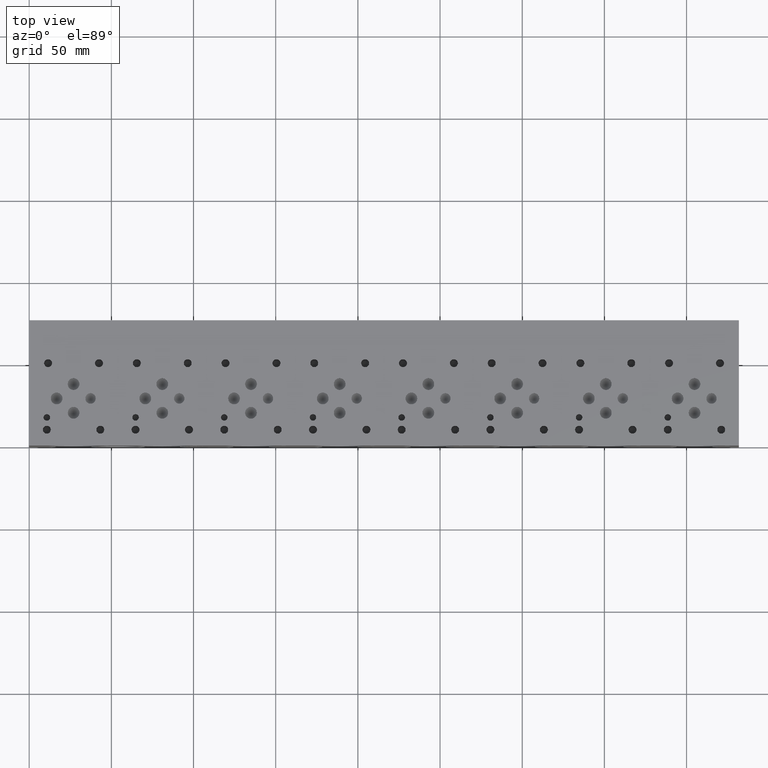
[diagram: clean part render]
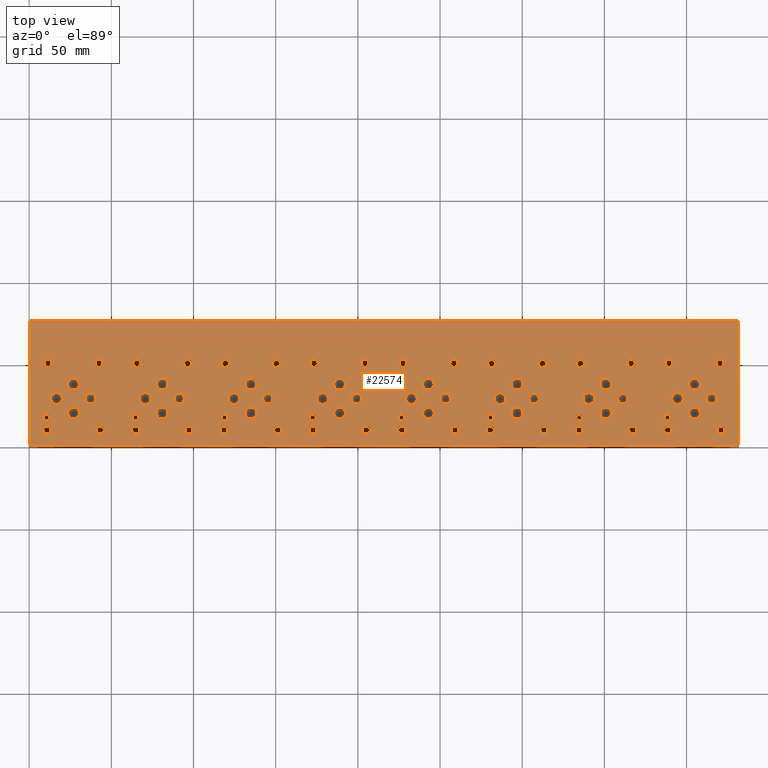
[diagram: same view with one face highlighted and labeled with its STEP entity id]
A machine part, top view. The second image highlights one B-rep face of the part: STEP entity #22574.
In plain terms, the highlighted planar face has unit normal (0, 0, 1).
Its self-contained STEP definition (entity closure, byte-faithful):
#824=CIRCLE('',#23741,1.9812);
#825=CIRCLE('',#23742,1.9812);
#828=CIRCLE('',#23747,1.9812);
#829=CIRCLE('',#23748,1.9812);
#832=CIRCLE('',#23753,1.9812);
#833=CIRCLE('',#23754,1.9812);
#836=CIRCLE('',#23759,1.9812);
#837=CIRCLE('',#23760,1.9812);
#840=CIRCLE('',#23765,1.9812);
#841=CIRCLE('',#23766,1.9812);
#844=CIRCLE('',#23771,1.9812);
#845=CIRCLE('',#23772,1.9812);
#848=CIRCLE('',#23777,1.9812);
#849=CIRCLE('',#23778,1.9812);
#852=CIRCLE('',#23783,3.175);
#853=CIRCLE('',#23784,3.175);
#856=CIRCLE('',#23789,3.175);
#857=CIRCLE('',#23790,3.175);
#860=CIRCLE('',#23795,3.175);
#861=CIRCLE('',#23796,3.175);
#864=CIRCLE('',#23801,3.175);
#865=CIRCLE('',#23802,3.175);
#868=CIRCLE('',#23807,3.175);
#869=CIRCLE('',#23808,3.175);
#872=CIRCLE('',#23813,3.175);
#873=CIRCLE('',#23814,3.175);
#876=CIRCLE('',#23819,3.175);
#877=CIRCLE('',#23820,3.175);
#880=CIRCLE('',#23825,3.175);
#881=CIRCLE('',#23826,3.175);
#884=CIRCLE('',#23831,3.5687);
#885=CIRCLE('',#23832,3.5687);
#888=CIRCLE('',#23837,3.5687);
#889=CIRCLE('',#23838,3.5687);
#892=CIRCLE('',#23843,3.5687);
#893=CIRCLE('',#23844,3.5687);
#896=CIRCLE('',#23849,3.5687);
#897=CIRCLE('',#23850,3.5687);
#900=CIRCLE('',#23855,3.5687);
#901=CIRCLE('',#23856,3.5687);
#904=CIRCLE('',#23861,3.5687);
#905=CIRCLE('',#23862,3.5687);
#908=CIRCLE('',#23867,3.5687);
#909=CIRCLE('',#23868,3.5687);
#912=CIRCLE('',#23873,3.5687);
#913=CIRCLE('',#23874,3.5687);
#916=CIRCLE('',#23879,3.5687);
#917=CIRCLE('',#23880,3.5687);
#920=CIRCLE('',#23885,3.5687);
#921=CIRCLE('',#23886,3.5687);
#924=CIRCLE('',#23891,3.5687);
#925=CIRCLE('',#23892,3.5687);
#928=CIRCLE('',#23897,3.5687);
#929=CIRCLE('',#23898,3.5687);
#932=CIRCLE('',#23903,3.5687);
#933=CIRCLE('',#23904,3.5687);
#936=CIRCLE('',#23909,3.5687);
#937=CIRCLE('',#23910,3.5687);
#940=CIRCLE('',#23915,3.5687);
#941=CIRCLE('',#23916,3.5687);
#944=CIRCLE('',#23921,3.5687);
#945=CIRCLE('',#23922,3.5687);
#948=CIRCLE('',#23927,3.5687);
#949=CIRCLE('',#23928,3.5687);
#952=CIRCLE('',#23933,3.5687);
#953=CIRCLE('',#23934,3.5687);
#956=CIRCLE('',#23939,3.5687);
#957=CIRCLE('',#23940,3.5687);
#960=CIRCLE('',#23945,3.5687);
#961=CIRCLE('',#23946,3.5687);
#964=CIRCLE('',#23951,3.5687);
#965=CIRCLE('',#23952,3.5687);
#968=CIRCLE('',#23957,3.5687);
#969=CIRCLE('',#23958,3.5687);
#972=CIRCLE('',#23963,3.5687);
#973=CIRCLE('',#23964,3.5687);
#976=CIRCLE('',#23969,3.5687);
#977=CIRCLE('',#23970,3.5687);
#980=CIRCLE('',#23975,1.9812);
#981=CIRCLE('',#23976,1.9812);
#987=CIRCLE('',#23985,2.413);
#988=CIRCLE('',#23986,2.413);
#994=CIRCLE('',#23996,2.413);
#995=CIRCLE('',#23997,2.413);
#1001=CIRCLE('',#24007,2.413);
#1002=CIRCLE('',#24008,2.413);
#1008=CIRCLE('',#24018,2.413);
#1009=CIRCLE('',#24019,2.413);
#1015=CIRCLE('',#24029,2.413);
#1016=CIRCLE('',#24030,2.413);
#1022=CIRCLE('',#24040,2.413);
#1023=CIRCLE('',#24041,2.413);
#1029=CIRCLE('',#24051,2.413);
#1030=CIRCLE('',#24052,2.413);
#1036=CIRCLE('',#24062,2.413);
#1037=CIRCLE('',#24063,2.413);
#1043=CIRCLE('',#24073,2.413);
#1044=CIRCLE('',#24074,2.413);
#1050=CIRCLE('',#24084,2.413);
#1051=CIRCLE('',#24085,2.413);
#1057=CIRCLE('',#24095,2.413);
#1058=CIRCLE('',#24096,2.413);
#1064=CIRCLE('',#24106,2.413);
#1065=CIRCLE('',#24107,2.413);
#1071=CIRCLE('',#24117,2.413);
#1072=CIRCLE('',#24118,2.413);
#1078=CIRCLE('',#24128,2.413);
#1079=CIRCLE('',#24129,2.413);
#1085=CIRCLE('',#24139,2.413);
#1086=CIRCLE('',#24140,2.413);
#1092=CIRCLE('',#24150,2.413);
#1093=CIRCLE('',#24151,2.413);
#1099=CIRCLE('',#24161,2.413);
#1100=CIRCLE('',#24162,2.413);
#1106=CIRCLE('',#24172,2.413);
#1107=CIRCLE('',#24173,2.413);
#1113=CIRCLE('',#24183,2.413);
#1114=CIRCLE('',#24184,2.413);
#1120=CIRCLE('',#24194,2.413);
#1121=CIRCLE('',#24195,2.413);
#1127=CIRCLE('',#24205,2.413);
#1128=CIRCLE('',#24206,2.413);
#1134=CIRCLE('',#24216,2.413);
#1135=CIRCLE('',#24217,2.413);
#1141=CIRCLE('',#24227,2.413);
#1142=CIRCLE('',#24228,2.413);
#1148=CIRCLE('',#24238,2.413);
#1149=CIRCLE('',#24239,2.413);
#1155=CIRCLE('',#24249,2.413);
#1156=CIRCLE('',#24250,2.413);
#1162=CIRCLE('',#24260,2.413);
#1163=CIRCLE('',#24261,2.413);
#1169=CIRCLE('',#24271,2.413);
#1170=CIRCLE('',#24272,2.413);
#1176=CIRCLE('',#24282,2.413);
#1177=CIRCLE('',#24283,2.413);
#1183=CIRCLE('',#24293,2.413);
#1184=CIRCLE('',#24294,2.413);
#1190=CIRCLE('',#24304,2.413);
#1191=CIRCLE('',#24305,2.413);
#1197=CIRCLE('',#24315,2.413);
#1198=CIRCLE('',#24316,2.413);
#1204=CIRCLE('',#24326,2.413);
#1205=CIRCLE('',#24327,2.413);
#1385=FACE_BOUND('',#4558,.T.);
#1386=FACE_BOUND('',#4559,.T.);
#1387=FACE_BOUND('',#4560,.T.);
#1388=FACE_BOUND('',#4561,.T.);
#1389=FACE_BOUND('',#4562,.T.);
#1390=FACE_BOUND('',#4563,.T.);
#1391=FACE_BOUND('',#4564,.T.);
#1392=FACE_BOUND('',#4565,.T.);
#1393=FACE_BOUND('',#4566,.T.);
#1394=FACE_BOUND('',#4567,.T.);
#1395=FACE_BOUND('',#4568,.T.);
#1396=FACE_BOUND('',#4569,.T.);
#1397=FACE_BOUND('',#4570,.T.);
#1398=FACE_BOUND('',#4571,.T.);
#1399=FACE_BOUND('',#4572,.T.);
#1400=FACE_BOUND('',#4573,.T.);
#1401=FACE_BOUND('',#4574,.T.);
#1402=FACE_BOUND('',#4575,.T.);
#1403=FACE_BOUND('',#4576,.T.);
#1404=FACE_BOUND('',#4577,.T.);
#1405=FACE_BOUND('',#4578,.T.);
#1406=FACE_BOUND('',#4579,.T.);
#1407=FACE_BOUND('',#4580,.T.);
#1408=FACE_BOUND('',#4581,.T.);
#1409=FACE_BOUND('',#4582,.T.);
#1410=FACE_BOUND('',#4583,.T.);
#1411=FACE_BOUND('',#4584,.T.);
#1412=FACE_BOUND('',#4585,.T.);
#1413=FACE_BOUND('',#4586,.T.);
#1414=FACE_BOUND('',#4587,.T.);
#1415=FACE_BOUND('',#4588,.T.);
#1416=FACE_BOUND('',#4589,.T.);
#1417=FACE_BOUND('',#4590,.T.);
#1418=FACE_BOUND('',#4591,.T.);
#1419=FACE_BOUND('',#4592,.T.);
#1420=FACE_BOUND('',#4593,.T.);
#1421=FACE_BOUND('',#4594,.T.);
#1422=FACE_BOUND('',#4595,.T.);
#1423=FACE_BOUND('',#4596,.T.);
#1424=FACE_BOUND('',#4597,.T.);
#1425=FACE_BOUND('',#4598,.T.);
#1426=FACE_BOUND('',#4599,.T.);
#1427=FACE_BOUND('',#4600,.T.);
#1428=FACE_BOUND('',#4601,.T.);
#1429=FACE_BOUND('',#4602,.T.);
#1430=FACE_BOUND('',#4603,.T.);
#1431=FACE_BOUND('',#4604,.T.);
#1432=FACE_BOUND('',#4605,.T.);
#1433=FACE_BOUND('',#4606,.T.);
#1434=FACE_BOUND('',#4607,.T.);
#1435=FACE_BOUND('',#4608,.T.);
#1436=FACE_BOUND('',#4609,.T.);
#1437=FACE_BOUND('',#4610,.T.);
#1438=FACE_BOUND('',#4611,.T.);
#1439=FACE_BOUND('',#4612,.T.);
#1440=FACE_BOUND('',#4613,.T.);
#1441=FACE_BOUND('',#4614,.T.);
#1442=FACE_BOUND('',#4615,.T.);
#1443=FACE_BOUND('',#4616,.T.);
#1444=FACE_BOUND('',#4617,.T.);
#1445=FACE_BOUND('',#4618,.T.);
#1446=FACE_BOUND('',#4619,.T.);
#1447=FACE_BOUND('',#4620,.T.);
#1448=FACE_BOUND('',#4621,.T.);
#1449=FACE_BOUND('',#4622,.T.);
#1450=FACE_BOUND('',#4623,.T.);
#1451=FACE_BOUND('',#4624,.T.);
#1452=FACE_BOUND('',#4625,.T.);
#1453=FACE_BOUND('',#4626,.T.);
#1454=FACE_BOUND('',#4627,.T.);
#1455=FACE_BOUND('',#4628,.T.);
#1456=FACE_BOUND('',#4629,.T.);
#2008=PLANE('',#24333);
#3193=FACE_OUTER_BOUND('',#4557,.T.);
#4557=EDGE_LOOP('',(#20295,#20296,#20297,#20298));
#4558=EDGE_LOOP('',(#20299,#20300));
#4559=EDGE_LOOP('',(#20301,#20302));
#4560=EDGE_LOOP('',(#20303,#20304));
#4561=EDGE_LOOP('',(#20305,#20306));
#4562=EDGE_LOOP('',(#20307,#20308));
#4563=EDGE_LOOP('',(#20309,#20310));
#4564=EDGE_LOOP('',(#20311,#20312));
#4565=EDGE_LOOP('',(#20313,#20314));
#4566=EDGE_LOOP('',(#20315,#20316));
#4567=EDGE_LOOP('',(#20317,#20318));
#4568=EDGE_LOOP('',(#20319,#20320));
#4569=EDGE_LOOP('',(#20321,#20322));
#4570=EDGE_LOOP('',(#20323,#20324));
#4571=EDGE_LOOP('',(#20325,#20326));
#4572=EDGE_LOOP('',(#20327,#20328));
#4573=EDGE_LOOP('',(#20329,#20330));
#4574=EDGE_LOOP('',(#20331,#20332));
#4575=EDGE_LOOP('',(#20333,#20334));
#4576=EDGE_LOOP('',(#20335,#20336));
#4577=EDGE_LOOP('',(#20337,#20338));
#4578=EDGE_LOOP('',(#20339,#20340));
#4579=EDGE_LOOP('',(#20341,#20342));
#4580=EDGE_LOOP('',(#20343,#20344));
#4581=EDGE_LOOP('',(#20345,#20346));
#4582=EDGE_LOOP('',(#20347,#20348));
#4583=EDGE_LOOP('',(#20349,#20350));
#4584=EDGE_LOOP('',(#20351,#20352));
#4585=EDGE_LOOP('',(#20353,#20354));
#4586=EDGE_LOOP('',(#20355,#20356));
#4587=EDGE_LOOP('',(#20357,#20358));
#4588=EDGE_LOOP('',(#20359,#20360));
#4589=EDGE_LOOP('',(#20361,#20362));
#4590=EDGE_LOOP('',(#20363,#20364));
#4591=EDGE_LOOP('',(#20365,#20366));
#4592=EDGE_LOOP('',(#20367,#20368));
#4593=EDGE_LOOP('',(#20369,#20370));
#4594=EDGE_LOOP('',(#20371,#20372));
#4595=EDGE_LOOP('',(#20373,#20374));
#4596=EDGE_LOOP('',(#20375,#20376));
#4597=EDGE_LOOP('',(#20377,#20378));
#4598=EDGE_LOOP('',(#20379,#20380));
#4599=EDGE_LOOP('',(#20381,#20382));
#4600=EDGE_LOOP('',(#20383,#20384));
#4601=EDGE_LOOP('',(#20385,#20386));
#4602=EDGE_LOOP('',(#20387,#20388));
#4603=EDGE_LOOP('',(#20389,#20390));
#4604=EDGE_LOOP('',(#20391,#20392));
#4605=EDGE_LOOP('',(#20393,#20394));
#4606=EDGE_LOOP('',(#20395,#20396));
#4607=EDGE_LOOP('',(#20397,#20398));
#4608=EDGE_LOOP('',(#20399,#20400));
#4609=EDGE_LOOP('',(#20401,#20402));
#4610=EDGE_LOOP('',(#20403,#20404));
#4611=EDGE_LOOP('',(#20405,#20406));
#4612=EDGE_LOOP('',(#20407,#20408));
#4613=EDGE_LOOP('',(#20409,#20410));
#4614=EDGE_LOOP('',(#20411,#20412));
#4615=EDGE_LOOP('',(#20413,#20414));
#4616=EDGE_LOOP('',(#20415,#20416));
#4617=EDGE_LOOP('',(#20417,#20418));
#4618=EDGE_LOOP('',(#20419,#20420));
#4619=EDGE_LOOP('',(#20421,#20422));
#4620=EDGE_LOOP('',(#20423,#20424));
#4621=EDGE_LOOP('',(#20425,#20426));
#4622=EDGE_LOOP('',(#20427,#20428));
#4623=EDGE_LOOP('',(#20429,#20430));
#4624=EDGE_LOOP('',(#20431,#20432));
#4625=EDGE_LOOP('',(#20433,#20434));
#4626=EDGE_LOOP('',(#20435,#20436));
#4627=EDGE_LOOP('',(#20437,#20438));
#4628=EDGE_LOOP('',(#20439,#20440));
#4629=EDGE_LOOP('',(#20441,#20442));
#4677=LINE('',#29985,#6500);
#5991=LINE('',#36710,#7814);
#6049=LINE('',#36981,#7872);
#6453=LINE('',#39510,#8276);
#6500=VECTOR('',#24407,10.);
#7814=VECTOR('',#26647,10.);
#7872=VECTOR('',#26759,10.);
#8276=VECTOR('',#29641,10.);
#8837=VERTEX_POINT('',#29982);
#8838=VERTEX_POINT('',#29984);
#10058=VERTEX_POINT('',#36708);
#10116=VERTEX_POINT('',#36980);
#10550=VERTEX_POINT('',#38291);
#10551=VERTEX_POINT('',#38292);
#10555=VERTEX_POINT('',#38304);
#10556=VERTEX_POINT('',#38305);
#10560=VERTEX_POINT('',#38317);
#10561=VERTEX_POINT('',#38318);
#10565=VERTEX_POINT('',#38330);
#10566=VERTEX_POINT('',#38331);
#10570=VERTEX_POINT('',#38343);
#10571=VERTEX_POINT('',#38344);
#10575=VERTEX_POINT('',#38356);
#10576=VERTEX_POINT('',#38357);
#10580=VERTEX_POINT('',#38369);
#10581=VERTEX_POINT('',#38370);
#10585=VERTEX_POINT('',#38382);
#10586=VERTEX_POINT('',#38383);
#10590=VERTEX_POINT('',#38395);
#10591=VERTEX_POINT('',#38396);
#10595=VERTEX_POINT('',#38408);
#10596=VERTEX_POINT('',#38409);
#10600=VERTEX_POINT('',#38421);
#10601=VERTEX_POINT('',#38422);
#10605=VERTEX_POINT('',#38434);
#10606=VERTEX_POINT('',#38435);
#10610=VERTEX_POINT('',#38447);
#10611=VERTEX_POINT('',#38448);
#10615=VERTEX_POINT('',#38460);
#10616=VERTEX_POINT('',#38461);
#10620=VERTEX_POINT('',#38473);
#10621=VERTEX_POINT('',#38474);
#10625=VERTEX_POINT('',#38486);
#10626=VERTEX_POINT('',#38487);
#10630=VERTEX_POINT('',#38499);
#10631=VERTEX_POINT('',#38500);
#10635=VERTEX_POINT('',#38512);
#10636=VERTEX_POINT('',#38513);
#10640=VERTEX_POINT('',#38525);
#10641=VERTEX_POINT('',#38526);
#10645=VERTEX_POINT('',#38538);
#10646=VERTEX_POINT('',#38539);
#10650=VERTEX_POINT('',#38551);
#10651=VERTEX_POINT('',#38552);
#10655=VERTEX_POINT('',#38564);
#10656=VERTEX_POINT('',#38565);
#10660=VERTEX_POINT('',#38577);
#10661=VERTEX_POINT('',#38578);
#10665=VERTEX_POINT('',#38590);
#10666=VERTEX_POINT('',#38591);
#10670=VERTEX_POINT('',#38603);
#10671=VERTEX_POINT('',#38604);
#10675=VERTEX_POINT('',#38616);
#10676=VERTEX_POINT('',#38617);
#10680=VERTEX_POINT('',#38629);
#10681=VERTEX_POINT('',#38630);
#10685=VERTEX_POINT('',#38642);
#10686=VERTEX_POINT('',#38643);
#10690=VERTEX_POINT('',#38655);
#10691=VERTEX_POINT('',#38656);
#10695=VERTEX_POINT('',#38668);
#10696=VERTEX_POINT('',#38669);
#10700=VERTEX_POINT('',#38681);
#10701=VERTEX_POINT('',#38682);
#10705=VERTEX_POINT('',#38694);
#10706=VERTEX_POINT('',#38695);
#10710=VERTEX_POINT('',#38707);
#10711=VERTEX_POINT('',#38708);
#10715=VERTEX_POINT('',#38720);
#10716=VERTEX_POINT('',#38721);
#10720=VERTEX_POINT('',#38733);
#10721=VERTEX_POINT('',#38734);
#10725=VERTEX_POINT('',#38746);
#10726=VERTEX_POINT('',#38747);
#10730=VERTEX_POINT('',#38759);
#10731=VERTEX_POINT('',#38760);
#10735=VERTEX_POINT('',#38772);
#10736=VERTEX_POINT('',#38773);
#10740=VERTEX_POINT('',#38785);
#10741=VERTEX_POINT('',#38786);
#10745=VERTEX_POINT('',#38798);
#10746=VERTEX_POINT('',#38799);
#10753=VERTEX_POINT('',#38818);
#10754=VERTEX_POINT('',#38819);
#10761=VERTEX_POINT('',#38840);
#10762=VERTEX_POINT('',#38841);
#10769=VERTEX_POINT('',#38862);
#10770=VERTEX_POINT('',#38863);
#10777=VERTEX_POINT('',#38884);
#10778=VERTEX_POINT('',#38885);
#10785=VERTEX_POINT('',#38906);
#10786=VERTEX_POINT('',#38907);
#10793=VERTEX_POINT('',#38928);
#10794=VERTEX_POINT('',#38929);
#10801=VERTEX_POINT('',#38950);
#10802=VERTEX_POINT('',#38951);
#10809=VERTEX_POINT('',#38972);
#10810=VERTEX_POINT('',#38973);
#10817=VERTEX_POINT('',#38994);
#10818=VERTEX_POINT('',#38995);
#10825=VERTEX_POINT('',#39016);
#10826=VERTEX_POINT('',#39017);
#10833=VERTEX_POINT('',#39038);
#10834=VERTEX_POINT('',#39039);
#10841=VERTEX_POINT('',#39060);
#10842=VERTEX_POINT('',#39061);
#10849=VERTEX_POINT('',#39082);
#10850=VERTEX_POINT('',#39083);
#10857=VERTEX_POINT('',#39104);
#10858=VERTEX_POINT('',#39105);
#10865=VERTEX_POINT('',#39126);
#10866=VERTEX_POINT('',#39127);
#10873=VERTEX_POINT('',#39148);
#10874=VERTEX_POINT('',#39149);
#10881=VERTEX_POINT('',#39170);
#10882=VERTEX_POINT('',#39171);
#10889=VERTEX_POINT('',#39192);
#10890=VERTEX_POINT('',#39193);
#10897=VERTEX_POINT('',#39214);
#10898=VERTEX_POINT('',#39215);
#10905=VERTEX_POINT('',#39236);
#10906=VERTEX_POINT('',#39237);
#10913=VERTEX_POINT('',#39258);
#10914=VERTEX_POINT('',#39259);
#10921=VERTEX_POINT('',#39280);
#10922=VERTEX_POINT('',#39281);
#10929=VERTEX_POINT('',#39302);
#10930=VERTEX_POINT('',#39303);
#10937=VERTEX_POINT('',#39324);
#10938=VERTEX_POINT('',#39325);
#10945=VERTEX_POINT('',#39346);
#10946=VERTEX_POINT('',#39347);
#10953=VERTEX_POINT('',#39368);
#10954=VERTEX_POINT('',#39369);
#10961=VERTEX_POINT('',#39390);
#10962=VERTEX_POINT('',#39391);
#10969=VERTEX_POINT('',#39412);
#10970=VERTEX_POINT('',#39413);
#10977=VERTEX_POINT('',#39434);
#10978=VERTEX_POINT('',#39435);
#10985=VERTEX_POINT('',#39456);
#10986=VERTEX_POINT('',#39457);
#10993=VERTEX_POINT('',#39478);
#10994=VERTEX_POINT('',#39479);
#11001=VERTEX_POINT('',#39500);
#11002=VERTEX_POINT('',#39501);
#11077=EDGE_CURVE('',#8838,#8837,#4677,.T.);
#12891=EDGE_CURVE('',#8837,#10058,#5991,.T.);
#12973=EDGE_CURVE('',#10116,#8838,#6049,.T.);
#13592=EDGE_CURVE('',#10550,#10551,#824,.T.);
#13593=EDGE_CURVE('',#10551,#10550,#825,.T.);
#13598=EDGE_CURVE('',#10555,#10556,#828,.T.);
#13599=EDGE_CURVE('',#10556,#10555,#829,.T.);
#13604=EDGE_CURVE('',#10560,#10561,#832,.T.);
#13605=EDGE_CURVE('',#10561,#10560,#833,.T.);
#13610=EDGE_CURVE('',#10565,#10566,#836,.T.);
#13611=EDGE_CURVE('',#10566,#10565,#837,.T.);
#13616=EDGE_CURVE('',#10570,#10571,#840,.T.);
#13617=EDGE_CURVE('',#10571,#10570,#841,.T.);
#13622=EDGE_CURVE('',#10575,#10576,#844,.T.);
#13623=EDGE_CURVE('',#10576,#10575,#845,.T.);
#13628=EDGE_CURVE('',#10580,#10581,#848,.T.);
#13629=EDGE_CURVE('',#10581,#10580,#849,.T.);
#13634=EDGE_CURVE('',#10585,#10586,#852,.T.);
#13635=EDGE_CURVE('',#10586,#10585,#853,.T.);
#13640=EDGE_CURVE('',#10590,#10591,#856,.T.);
#13641=EDGE_CURVE('',#10591,#10590,#857,.T.);
#13646=EDGE_CURVE('',#10595,#10596,#860,.T.);
#13647=EDGE_CURVE('',#10596,#10595,#861,.T.);
#13652=EDGE_CURVE('',#10600,#10601,#864,.T.);
#13653=EDGE_CURVE('',#10601,#10600,#865,.T.);
#13658=EDGE_CURVE('',#10605,#10606,#868,.T.);
#13659=EDGE_CURVE('',#10606,#10605,#869,.T.);
#13664=EDGE_CURVE('',#10610,#10611,#872,.T.);
#13665=EDGE_CURVE('',#10611,#10610,#873,.T.);
#13670=EDGE_CURVE('',#10615,#10616,#876,.T.);
#13671=EDGE_CURVE('',#10616,#10615,#877,.T.);
#13676=EDGE_CURVE('',#10620,#10621,#880,.T.);
#13677=EDGE_CURVE('',#10621,#10620,#881,.T.);
#13682=EDGE_CURVE('',#10625,#10626,#884,.T.);
#13683=EDGE_CURVE('',#10626,#10625,#885,.T.);
#13688=EDGE_CURVE('',#10630,#10631,#888,.T.);
#13689=EDGE_CURVE('',#10631,#10630,#889,.T.);
#13694=EDGE_CURVE('',#10635,#10636,#892,.T.);
#13695=EDGE_CURVE('',#10636,#10635,#893,.T.);
#13700=EDGE_CURVE('',#10640,#10641,#896,.T.);
#13701=EDGE_CURVE('',#10641,#10640,#897,.T.);
#13706=EDGE_CURVE('',#10645,#10646,#900,.T.);
#13707=EDGE_CURVE('',#10646,#10645,#901,.T.);
#13712=EDGE_CURVE('',#10650,#10651,#904,.T.);
#13713=EDGE_CURVE('',#10651,#10650,#905,.T.);
#13718=EDGE_CURVE('',#10655,#10656,#908,.T.);
#13719=EDGE_CURVE('',#10656,#10655,#909,.T.);
#13724=EDGE_CURVE('',#10660,#10661,#912,.T.);
#13725=EDGE_CURVE('',#10661,#10660,#913,.T.);
#13730=EDGE_CURVE('',#10665,#10666,#916,.T.);
#13731=EDGE_CURVE('',#10666,#10665,#917,.T.);
#13736=EDGE_CURVE('',#10670,#10671,#920,.T.);
#13737=EDGE_CURVE('',#10671,#10670,#921,.T.);
#13742=EDGE_CURVE('',#10675,#10676,#924,.T.);
#13743=EDGE_CURVE('',#10676,#10675,#925,.T.);
#13748=EDGE_CURVE('',#10680,#10681,#928,.T.);
#13749=EDGE_CURVE('',#10681,#10680,#929,.T.);
#13754=EDGE_CURVE('',#10685,#10686,#932,.T.);
#13755=EDGE_CURVE('',#10686,#10685,#933,.T.);
#13760=EDGE_CURVE('',#10690,#10691,#936,.T.);
#13761=EDGE_CURVE('',#10691,#10690,#937,.T.);
#13766=EDGE_CURVE('',#10695,#10696,#940,.T.);
#13767=EDGE_CURVE('',#10696,#10695,#941,.T.);
#13772=EDGE_CURVE('',#10700,#10701,#944,.T.);
#13773=EDGE_CURVE('',#10701,#10700,#945,.T.);
#13778=EDGE_CURVE('',#10705,#10706,#948,.T.);
#13779=EDGE_CURVE('',#10706,#10705,#949,.T.);
#13784=EDGE_CURVE('',#10710,#10711,#952,.T.);
#13785=EDGE_CURVE('',#10711,#10710,#953,.T.);
#13790=EDGE_CURVE('',#10715,#10716,#956,.T.);
#13791=EDGE_CURVE('',#10716,#10715,#957,.T.);
#13796=EDGE_CURVE('',#10720,#10721,#960,.T.);
#13797=EDGE_CURVE('',#10721,#10720,#961,.T.);
#13802=EDGE_CURVE('',#10725,#10726,#964,.T.);
#13803=EDGE_CURVE('',#10726,#10725,#965,.T.);
#13808=EDGE_CURVE('',#10730,#10731,#968,.T.);
#13809=EDGE_CURVE('',#10731,#10730,#969,.T.);
#13814=EDGE_CURVE('',#10735,#10736,#972,.T.);
#13815=EDGE_CURVE('',#10736,#10735,#973,.T.);
#13820=EDGE_CURVE('',#10740,#10741,#976,.T.);
#13821=EDGE_CURVE('',#10741,#10740,#977,.T.);
#13826=EDGE_CURVE('',#10745,#10746,#980,.T.);
#13827=EDGE_CURVE('',#10746,#10745,#981,.T.);
#13835=EDGE_CURVE('',#10753,#10754,#987,.T.);
#13836=EDGE_CURVE('',#10754,#10753,#988,.T.);
#13845=EDGE_CURVE('',#10761,#10762,#994,.T.);
#13846=EDGE_CURVE('',#10762,#10761,#995,.T.);
#13855=EDGE_CURVE('',#10769,#10770,#1001,.T.);
#13856=EDGE_CURVE('',#10770,#10769,#1002,.T.);
#13865=EDGE_CURVE('',#10777,#10778,#1008,.T.);
#13866=EDGE_CURVE('',#10778,#10777,#1009,.T.);
#13875=EDGE_CURVE('',#10785,#10786,#1015,.T.);
#13876=EDGE_CURVE('',#10786,#10785,#1016,.T.);
#13885=EDGE_CURVE('',#10793,#10794,#1022,.T.);
#13886=EDGE_CURVE('',#10794,#10793,#1023,.T.);
#13895=EDGE_CURVE('',#10801,#10802,#1029,.T.);
#13896=EDGE_CURVE('',#10802,#10801,#1030,.T.);
#13905=EDGE_CURVE('',#10809,#10810,#1036,.T.);
#13906=EDGE_CURVE('',#10810,#10809,#1037,.T.);
#13915=EDGE_CURVE('',#10817,#10818,#1043,.T.);
#13916=EDGE_CURVE('',#10818,#10817,#1044,.T.);
#13925=EDGE_CURVE('',#10825,#10826,#1050,.T.);
#13926=EDGE_CURVE('',#10826,#10825,#1051,.T.);
#13935=EDGE_CURVE('',#10833,#10834,#1057,.T.);
#13936=EDGE_CURVE('',#10834,#10833,#1058,.T.);
#13945=EDGE_CURVE('',#10841,#10842,#1064,.T.);
#13946=EDGE_CURVE('',#10842,#10841,#1065,.T.);
#13955=EDGE_CURVE('',#10849,#10850,#1071,.T.);
#13956=EDGE_CURVE('',#10850,#10849,#1072,.T.);
#13965=EDGE_CURVE('',#10857,#10858,#1078,.T.);
#13966=EDGE_CURVE('',#10858,#10857,#1079,.T.);
#13975=EDGE_CURVE('',#10865,#10866,#1085,.T.);
#13976=EDGE_CURVE('',#10866,#10865,#1086,.T.);
#13985=EDGE_CURVE('',#10873,#10874,#1092,.T.);
#13986=EDGE_CURVE('',#10874,#10873,#1093,.T.);
#13995=EDGE_CURVE('',#10881,#10882,#1099,.T.);
#13996=EDGE_CURVE('',#10882,#10881,#1100,.T.);
#14005=EDGE_CURVE('',#10889,#10890,#1106,.T.);
#14006=EDGE_CURVE('',#10890,#10889,#1107,.T.);
#14015=EDGE_CURVE('',#10897,#10898,#1113,.T.);
#14016=EDGE_CURVE('',#10898,#10897,#1114,.T.);
#14025=EDGE_CURVE('',#10905,#10906,#1120,.T.);
#14026=EDGE_CURVE('',#10906,#10905,#1121,.T.);
#14035=EDGE_CURVE('',#10913,#10914,#1127,.T.);
#14036=EDGE_CURVE('',#10914,#10913,#1128,.T.);
#14045=EDGE_CURVE('',#10921,#10922,#1134,.T.);
#14046=EDGE_CURVE('',#10922,#10921,#1135,.T.);
#14055=EDGE_CURVE('',#10929,#10930,#1141,.T.);
#14056=EDGE_CURVE('',#10930,#10929,#1142,.T.);
#14065=EDGE_CURVE('',#10937,#10938,#1148,.T.);
#14066=EDGE_CURVE('',#10938,#10937,#1149,.T.);
#14075=EDGE_CURVE('',#10945,#10946,#1155,.T.);
#14076=EDGE_CURVE('',#10946,#10945,#1156,.T.);
#14085=EDGE_CURVE('',#10953,#10954,#1162,.T.);
#14086=EDGE_CURVE('',#10954,#10953,#1163,.T.);
#14095=EDGE_CURVE('',#10961,#10962,#1169,.T.);
#14096=EDGE_CURVE('',#10962,#10961,#1170,.T.);
#14105=EDGE_CURVE('',#10969,#10970,#1176,.T.);
#14106=EDGE_CURVE('',#10970,#10969,#1177,.T.);
#14115=EDGE_CURVE('',#10977,#10978,#1183,.T.);
#14116=EDGE_CURVE('',#10978,#10977,#1184,.T.);
#14125=EDGE_CURVE('',#10985,#10986,#1190,.T.);
#14126=EDGE_CURVE('',#10986,#10985,#1191,.T.);
#14135=EDGE_CURVE('',#10993,#10994,#1197,.T.);
#14136=EDGE_CURVE('',#10994,#10993,#1198,.T.);
#14145=EDGE_CURVE('',#11001,#11002,#1204,.T.);
#14146=EDGE_CURVE('',#11002,#11001,#1205,.T.);
#14150=EDGE_CURVE('',#10058,#10116,#6453,.T.);
#20295=ORIENTED_EDGE('',*,*,#11077,.T.);
#20296=ORIENTED_EDGE('',*,*,#12891,.T.);
#20297=ORIENTED_EDGE('',*,*,#14150,.T.);
#20298=ORIENTED_EDGE('',*,*,#12973,.T.);
#20299=ORIENTED_EDGE('',*,*,#13592,.T.);
#20300=ORIENTED_EDGE('',*,*,#13593,.T.);
#20301=ORIENTED_EDGE('',*,*,#13598,.T.);
#20302=ORIENTED_EDGE('',*,*,#13599,.T.);
#20303=ORIENTED_EDGE('',*,*,#13604,.T.);
#20304=ORIENTED_EDGE('',*,*,#13605,.T.);
#20305=ORIENTED_EDGE('',*,*,#13610,.T.);
#20306=ORIENTED_EDGE('',*,*,#13611,.T.);
#20307=ORIENTED_EDGE('',*,*,#13616,.T.);
#20308=ORIENTED_EDGE('',*,*,#13617,.T.);
#20309=ORIENTED_EDGE('',*,*,#13622,.T.);
#20310=ORIENTED_EDGE('',*,*,#13623,.T.);
#20311=ORIENTED_EDGE('',*,*,#13628,.T.);
#20312=ORIENTED_EDGE('',*,*,#13629,.T.);
#20313=ORIENTED_EDGE('',*,*,#13634,.T.);
#20314=ORIENTED_EDGE('',*,*,#13635,.T.);
#20315=ORIENTED_EDGE('',*,*,#13640,.T.);
#20316=ORIENTED_EDGE('',*,*,#13641,.T.);
#20317=ORIENTED_EDGE('',*,*,#13646,.T.);
#20318=ORIENTED_EDGE('',*,*,#13647,.T.);
#20319=ORIENTED_EDGE('',*,*,#13652,.T.);
#20320=ORIENTED_EDGE('',*,*,#13653,.T.);
#20321=ORIENTED_EDGE('',*,*,#13658,.T.);
#20322=ORIENTED_EDGE('',*,*,#13659,.T.);
#20323=ORIENTED_EDGE('',*,*,#13664,.T.);
#20324=ORIENTED_EDGE('',*,*,#13665,.T.);
#20325=ORIENTED_EDGE('',*,*,#13670,.T.);
#20326=ORIENTED_EDGE('',*,*,#13671,.T.);
#20327=ORIENTED_EDGE('',*,*,#13676,.T.);
#20328=ORIENTED_EDGE('',*,*,#13677,.T.);
#20329=ORIENTED_EDGE('',*,*,#13682,.T.);
#20330=ORIENTED_EDGE('',*,*,#13683,.T.);
#20331=ORIENTED_EDGE('',*,*,#13688,.T.);
#20332=ORIENTED_EDGE('',*,*,#13689,.T.);
#20333=ORIENTED_EDGE('',*,*,#13694,.T.);
#20334=ORIENTED_EDGE('',*,*,#13695,.T.);
#20335=ORIENTED_EDGE('',*,*,#13700,.T.);
#20336=ORIENTED_EDGE('',*,*,#13701,.T.);
#20337=ORIENTED_EDGE('',*,*,#13706,.T.);
#20338=ORIENTED_EDGE('',*,*,#13707,.T.);
#20339=ORIENTED_EDGE('',*,*,#13712,.T.);
#20340=ORIENTED_EDGE('',*,*,#13713,.T.);
#20341=ORIENTED_EDGE('',*,*,#13718,.T.);
#20342=ORIENTED_EDGE('',*,*,#13719,.T.);
#20343=ORIENTED_EDGE('',*,*,#13724,.T.);
#20344=ORIENTED_EDGE('',*,*,#13725,.T.);
#20345=ORIENTED_EDGE('',*,*,#13730,.T.);
#20346=ORIENTED_EDGE('',*,*,#13731,.T.);
#20347=ORIENTED_EDGE('',*,*,#13736,.T.);
#20348=ORIENTED_EDGE('',*,*,#13737,.T.);
#20349=ORIENTED_EDGE('',*,*,#13742,.T.);
#20350=ORIENTED_EDGE('',*,*,#13743,.T.);
#20351=ORIENTED_EDGE('',*,*,#13748,.T.);
#20352=ORIENTED_EDGE('',*,*,#13749,.T.);
#20353=ORIENTED_EDGE('',*,*,#13754,.T.);
#20354=ORIENTED_EDGE('',*,*,#13755,.T.);
#20355=ORIENTED_EDGE('',*,*,#13760,.T.);
#20356=ORIENTED_EDGE('',*,*,#13761,.T.);
#20357=ORIENTED_EDGE('',*,*,#13766,.T.);
#20358=ORIENTED_EDGE('',*,*,#13767,.T.);
#20359=ORIENTED_EDGE('',*,*,#13772,.T.);
#20360=ORIENTED_EDGE('',*,*,#13773,.T.);
#20361=ORIENTED_EDGE('',*,*,#13778,.T.);
#20362=ORIENTED_EDGE('',*,*,#13779,.T.);
#20363=ORIENTED_EDGE('',*,*,#13784,.T.);
#20364=ORIENTED_EDGE('',*,*,#13785,.T.);
#20365=ORIENTED_EDGE('',*,*,#13790,.T.);
#20366=ORIENTED_EDGE('',*,*,#13791,.T.);
#20367=ORIENTED_EDGE('',*,*,#13796,.T.);
#20368=ORIENTED_EDGE('',*,*,#13797,.T.);
#20369=ORIENTED_EDGE('',*,*,#13802,.T.);
#20370=ORIENTED_EDGE('',*,*,#13803,.T.);
#20371=ORIENTED_EDGE('',*,*,#13808,.T.);
#20372=ORIENTED_EDGE('',*,*,#13809,.T.);
#20373=ORIENTED_EDGE('',*,*,#13814,.T.);
#20374=ORIENTED_EDGE('',*,*,#13815,.T.);
#20375=ORIENTED_EDGE('',*,*,#13820,.T.);
#20376=ORIENTED_EDGE('',*,*,#13821,.T.);
#20377=ORIENTED_EDGE('',*,*,#13826,.T.);
#20378=ORIENTED_EDGE('',*,*,#13827,.T.);
#20379=ORIENTED_EDGE('',*,*,#13835,.T.);
#20380=ORIENTED_EDGE('',*,*,#13836,.T.);
#20381=ORIENTED_EDGE('',*,*,#13845,.T.);
#20382=ORIENTED_EDGE('',*,*,#13846,.T.);
#20383=ORIENTED_EDGE('',*,*,#13855,.T.);
#20384=ORIENTED_EDGE('',*,*,#13856,.T.);
#20385=ORIENTED_EDGE('',*,*,#13865,.T.);
#20386=ORIENTED_EDGE('',*,*,#13866,.T.);
#20387=ORIENTED_EDGE('',*,*,#13875,.T.);
#20388=ORIENTED_EDGE('',*,*,#13876,.T.);
#20389=ORIENTED_EDGE('',*,*,#13885,.T.);
#20390=ORIENTED_EDGE('',*,*,#13886,.T.);
#20391=ORIENTED_EDGE('',*,*,#13895,.T.);
#20392=ORIENTED_EDGE('',*,*,#13896,.T.);
#20393=ORIENTED_EDGE('',*,*,#13905,.T.);
#20394=ORIENTED_EDGE('',*,*,#13906,.T.);
#20395=ORIENTED_EDGE('',*,*,#13915,.T.);
#20396=ORIENTED_EDGE('',*,*,#13916,.T.);
#20397=ORIENTED_EDGE('',*,*,#13925,.T.);
#20398=ORIENTED_EDGE('',*,*,#13926,.T.);
#20399=ORIENTED_EDGE('',*,*,#13935,.T.);
#20400=ORIENTED_EDGE('',*,*,#13936,.T.);
#20401=ORIENTED_EDGE('',*,*,#13945,.T.);
#20402=ORIENTED_EDGE('',*,*,#13946,.T.);
#20403=ORIENTED_EDGE('',*,*,#13955,.T.);
#20404=ORIENTED_EDGE('',*,*,#13956,.T.);
#20405=ORIENTED_EDGE('',*,*,#13965,.T.);
#20406=ORIENTED_EDGE('',*,*,#13966,.T.);
#20407=ORIENTED_EDGE('',*,*,#13975,.T.);
#20408=ORIENTED_EDGE('',*,*,#13976,.T.);
#20409=ORIENTED_EDGE('',*,*,#13985,.T.);
#20410=ORIENTED_EDGE('',*,*,#13986,.T.);
#20411=ORIENTED_EDGE('',*,*,#13995,.T.);
#20412=ORIENTED_EDGE('',*,*,#13996,.T.);
#20413=ORIENTED_EDGE('',*,*,#14005,.T.);
#20414=ORIENTED_EDGE('',*,*,#14006,.T.);
#20415=ORIENTED_EDGE('',*,*,#14015,.T.);
#20416=ORIENTED_EDGE('',*,*,#14016,.T.);
#20417=ORIENTED_EDGE('',*,*,#14025,.T.);
#20418=ORIENTED_EDGE('',*,*,#14026,.T.);
#20419=ORIENTED_EDGE('',*,*,#14035,.T.);
#20420=ORIENTED_EDGE('',*,*,#14036,.T.);
#20421=ORIENTED_EDGE('',*,*,#14045,.T.);
#20422=ORIENTED_EDGE('',*,*,#14046,.T.);
#20423=ORIENTED_EDGE('',*,*,#14055,.T.);
#20424=ORIENTED_EDGE('',*,*,#14056,.T.);
#20425=ORIENTED_EDGE('',*,*,#14065,.T.);
#20426=ORIENTED_EDGE('',*,*,#14066,.T.);
#20427=ORIENTED_EDGE('',*,*,#14075,.T.);
#20428=ORIENTED_EDGE('',*,*,#14076,.T.);
#20429=ORIENTED_EDGE('',*,*,#14085,.T.);
#20430=ORIENTED_EDGE('',*,*,#14086,.T.);
#20431=ORIENTED_EDGE('',*,*,#14095,.T.);
#20432=ORIENTED_EDGE('',*,*,#14096,.T.);
#20433=ORIENTED_EDGE('',*,*,#14105,.T.);
#20434=ORIENTED_EDGE('',*,*,#14106,.T.);
#20435=ORIENTED_EDGE('',*,*,#14115,.T.);
#20436=ORIENTED_EDGE('',*,*,#14116,.T.);
#20437=ORIENTED_EDGE('',*,*,#14125,.T.);
#20438=ORIENTED_EDGE('',*,*,#14126,.T.);
#20439=ORIENTED_EDGE('',*,*,#14135,.T.);
#20440=ORIENTED_EDGE('',*,*,#14136,.T.);
#20441=ORIENTED_EDGE('',*,*,#14145,.T.);
#20442=ORIENTED_EDGE('',*,*,#14146,.T.);
#22574=ADVANCED_FACE('',(#3193,#1385,#1386,#1387,#1388,#1389,#1390,#1391,
#1392,#1393,#1394,#1395,#1396,#1397,#1398,#1399,#1400,#1401,#1402,#1403,
#1404,#1405,#1406,#1407,#1408,#1409,#1410,#1411,#1412,#1413,#1414,#1415,
#1416,#1417,#1418,#1419,#1420,#1421,#1422,#1423,#1424,#1425,#1426,#1427,
#1428,#1429,#1430,#1431,#1432,#1433,#1434,#1435,#1436,#1437,#1438,#1439,
#1440,#1441,#1442,#1443,#1444,#1445,#1446,#1447,#1448,#1449,#1450,#1451,
#1452,#1453,#1454,#1455,#1456),#2008,.T.);
#23741=AXIS2_PLACEMENT_3D('',#38293,#28285,#28286);
#23742=AXIS2_PLACEMENT_3D('',#38294,#28287,#28288);
#23747=AXIS2_PLACEMENT_3D('',#38306,#28299,#28300);
#23748=AXIS2_PLACEMENT_3D('',#38307,#28301,#28302);
#23753=AXIS2_PLACEMENT_3D('',#38319,#28313,#28314);
#23754=AXIS2_PLACEMENT_3D('',#38320,#28315,#28316);
#23759=AXIS2_PLACEMENT_3D('',#38332,#28327,#28328);
#23760=AXIS2_PLACEMENT_3D('',#38333,#28329,#28330);
#23765=AXIS2_PLACEMENT_3D('',#38345,#28341,#28342);
#23766=AXIS2_PLACEMENT_3D('',#38346,#28343,#28344);
#23771=AXIS2_PLACEMENT_3D('',#38358,#28355,#28356);
#23772=AXIS2_PLACEMENT_3D('',#38359,#28357,#28358);
#23777=AXIS2_PLACEMENT_3D('',#38371,#28369,#28370);
#23778=AXIS2_PLACEMENT_3D('',#38372,#28371,#28372);
#23783=AXIS2_PLACEMENT_3D('',#38384,#28383,#28384);
#23784=AXIS2_PLACEMENT_3D('',#38385,#28385,#28386);
#23789=AXIS2_PLACEMENT_3D('',#38397,#28397,#28398);
#23790=AXIS2_PLACEMENT_3D('',#38398,#28399,#28400);
#23795=AXIS2_PLACEMENT_3D('',#38410,#28411,#28412);
#23796=AXIS2_PLACEMENT_3D('',#38411,#28413,#28414);
#23801=AXIS2_PLACEMENT_3D('',#38423,#28425,#28426);
#23802=AXIS2_PLACEMENT_3D('',#38424,#28427,#28428);
#23807=AXIS2_PLACEMENT_3D('',#38436,#28439,#28440);
#23808=AXIS2_PLACEMENT_3D('',#38437,#28441,#28442);
#23813=AXIS2_PLACEMENT_3D('',#38449,#28453,#28454);
#23814=AXIS2_PLACEMENT_3D('',#38450,#28455,#28456);
#23819=AXIS2_PLACEMENT_3D('',#38462,#28467,#28468);
#23820=AXIS2_PLACEMENT_3D('',#38463,#28469,#28470);
#23825=AXIS2_PLACEMENT_3D('',#38475,#28481,#28482);
#23826=AXIS2_PLACEMENT_3D('',#38476,#28483,#28484);
#23831=AXIS2_PLACEMENT_3D('',#38488,#28495,#28496);
#23832=AXIS2_PLACEMENT_3D('',#38489,#28497,#28498);
#23837=AXIS2_PLACEMENT_3D('',#38501,#28509,#28510);
#23838=AXIS2_PLACEMENT_3D('',#38502,#28511,#28512);
#23843=AXIS2_PLACEMENT_3D('',#38514,#28523,#28524);
#23844=AXIS2_PLACEMENT_3D('',#38515,#28525,#28526);
#23849=AXIS2_PLACEMENT_3D('',#38527,#28537,#28538);
#23850=AXIS2_PLACEMENT_3D('',#38528,#28539,#28540);
#23855=AXIS2_PLACEMENT_3D('',#38540,#28551,#28552);
#23856=AXIS2_PLACEMENT_3D('',#38541,#28553,#28554);
#23861=AXIS2_PLACEMENT_3D('',#38553,#28565,#28566);
#23862=AXIS2_PLACEMENT_3D('',#38554,#28567,#28568);
#23867=AXIS2_PLACEMENT_3D('',#38566,#28579,#28580);
#23868=AXIS2_PLACEMENT_3D('',#38567,#28581,#28582);
#23873=AXIS2_PLACEMENT_3D('',#38579,#28593,#28594);
#23874=AXIS2_PLACEMENT_3D('',#38580,#28595,#28596);
#23879=AXIS2_PLACEMENT_3D('',#38592,#28607,#28608);
#23880=AXIS2_PLACEMENT_3D('',#38593,#28609,#28610);
#23885=AXIS2_PLACEMENT_3D('',#38605,#28621,#28622);
#23886=AXIS2_PLACEMENT_3D('',#38606,#28623,#28624);
#23891=AXIS2_PLACEMENT_3D('',#38618,#28635,#28636);
#23892=AXIS2_PLACEMENT_3D('',#38619,#28637,#28638);
#23897=AXIS2_PLACEMENT_3D('',#38631,#28649,#28650);
#23898=AXIS2_PLACEMENT_3D('',#38632,#28651,#28652);
#23903=AXIS2_PLACEMENT_3D('',#38644,#28663,#28664);
#23904=AXIS2_PLACEMENT_3D('',#38645,#28665,#28666);
#23909=AXIS2_PLACEMENT_3D('',#38657,#28677,#28678);
#23910=AXIS2_PLACEMENT_3D('',#38658,#28679,#28680);
#23915=AXIS2_PLACEMENT_3D('',#38670,#28691,#28692);
#23916=AXIS2_PLACEMENT_3D('',#38671,#28693,#28694);
#23921=AXIS2_PLACEMENT_3D('',#38683,#28705,#28706);
#23922=AXIS2_PLACEMENT_3D('',#38684,#28707,#28708);
#23927=AXIS2_PLACEMENT_3D('',#38696,#28719,#28720);
#23928=AXIS2_PLACEMENT_3D('',#38697,#28721,#28722);
#23933=AXIS2_PLACEMENT_3D('',#38709,#28733,#28734);
#23934=AXIS2_PLACEMENT_3D('',#38710,#28735,#28736);
#23939=AXIS2_PLACEMENT_3D('',#38722,#28747,#28748);
#23940=AXIS2_PLACEMENT_3D('',#38723,#28749,#28750);
#23945=AXIS2_PLACEMENT_3D('',#38735,#28761,#28762);
#23946=AXIS2_PLACEMENT_3D('',#38736,#28763,#28764);
#23951=AXIS2_PLACEMENT_3D('',#38748,#28775,#28776);
#23952=AXIS2_PLACEMENT_3D('',#38749,#28777,#28778);
#23957=AXIS2_PLACEMENT_3D('',#38761,#28789,#28790);
#23958=AXIS2_PLACEMENT_3D('',#38762,#28791,#28792);
#23963=AXIS2_PLACEMENT_3D('',#38774,#28803,#28804);
#23964=AXIS2_PLACEMENT_3D('',#38775,#28805,#28806);
#23969=AXIS2_PLACEMENT_3D('',#38787,#28817,#28818);
#23970=AXIS2_PLACEMENT_3D('',#38788,#28819,#28820);
#23975=AXIS2_PLACEMENT_3D('',#38800,#28831,#28832);
#23976=AXIS2_PLACEMENT_3D('',#38801,#28833,#28834);
#23985=AXIS2_PLACEMENT_3D('',#38820,#28853,#28854);
#23986=AXIS2_PLACEMENT_3D('',#38821,#28855,#28856);
#23996=AXIS2_PLACEMENT_3D('',#38842,#28878,#28879);
#23997=AXIS2_PLACEMENT_3D('',#38843,#28880,#28881);
#24007=AXIS2_PLACEMENT_3D('',#38864,#28903,#28904);
#24008=AXIS2_PLACEMENT_3D('',#38865,#28905,#28906);
#24018=AXIS2_PLACEMENT_3D('',#38886,#28928,#28929);
#24019=AXIS2_PLACEMENT_3D('',#38887,#28930,#28931);
#24029=AXIS2_PLACEMENT_3D('',#38908,#28953,#28954);
#24030=AXIS2_PLACEMENT_3D('',#38909,#28955,#28956);
#24040=AXIS2_PLACEMENT_3D('',#38930,#28978,#28979);
#24041=AXIS2_PLACEMENT_3D('',#38931,#28980,#28981);
#24051=AXIS2_PLACEMENT_3D('',#38952,#29003,#29004);
#24052=AXIS2_PLACEMENT_3D('',#38953,#29005,#29006);
#24062=AXIS2_PLACEMENT_3D('',#38974,#29028,#29029);
#24063=AXIS2_PLACEMENT_3D('',#38975,#29030,#29031);
#24073=AXIS2_PLACEMENT_3D('',#38996,#29053,#29054);
#24074=AXIS2_PLACEMENT_3D('',#38997,#29055,#29056);
#24084=AXIS2_PLACEMENT_3D('',#39018,#29078,#29079);
#24085=AXIS2_PLACEMENT_3D('',#39019,#29080,#29081);
#24095=AXIS2_PLACEMENT_3D('',#39040,#29103,#29104);
#24096=AXIS2_PLACEMENT_3D('',#39041,#29105,#29106);
#24106=AXIS2_PLACEMENT_3D('',#39062,#29128,#29129);
#24107=AXIS2_PLACEMENT_3D('',#39063,#29130,#29131);
#24117=AXIS2_PLACEMENT_3D('',#39084,#29153,#29154);
#24118=AXIS2_PLACEMENT_3D('',#39085,#29155,#29156);
#24128=AXIS2_PLACEMENT_3D('',#39106,#29178,#29179);
#24129=AXIS2_PLACEMENT_3D('',#39107,#29180,#29181);
#24139=AXIS2_PLACEMENT_3D('',#39128,#29203,#29204);
#24140=AXIS2_PLACEMENT_3D('',#39129,#29205,#29206);
#24150=AXIS2_PLACEMENT_3D('',#39150,#29228,#29229);
#24151=AXIS2_PLACEMENT_3D('',#39151,#29230,#29231);
#24161=AXIS2_PLACEMENT_3D('',#39172,#29253,#29254);
#24162=AXIS2_PLACEMENT_3D('',#39173,#29255,#29256);
#24172=AXIS2_PLACEMENT_3D('',#39194,#29278,#29279);
#24173=AXIS2_PLACEMENT_3D('',#39195,#29280,#29281);
#24183=AXIS2_PLACEMENT_3D('',#39216,#29303,#29304);
#24184=AXIS2_PLACEMENT_3D('',#39217,#29305,#29306);
#24194=AXIS2_PLACEMENT_3D('',#39238,#29328,#29329);
#24195=AXIS2_PLACEMENT_3D('',#39239,#29330,#29331);
#24205=AXIS2_PLACEMENT_3D('',#39260,#29353,#29354);
#24206=AXIS2_PLACEMENT_3D('',#39261,#29355,#29356);
#24216=AXIS2_PLACEMENT_3D('',#39282,#29378,#29379);
#24217=AXIS2_PLACEMENT_3D('',#39283,#29380,#29381);
#24227=AXIS2_PLACEMENT_3D('',#39304,#29403,#29404);
#24228=AXIS2_PLACEMENT_3D('',#39305,#29405,#29406);
#24238=AXIS2_PLACEMENT_3D('',#39326,#29428,#29429);
#24239=AXIS2_PLACEMENT_3D('',#39327,#29430,#29431);
#24249=AXIS2_PLACEMENT_3D('',#39348,#29453,#29454);
#24250=AXIS2_PLACEMENT_3D('',#39349,#29455,#29456);
#24260=AXIS2_PLACEMENT_3D('',#39370,#29478,#29479);
#24261=AXIS2_PLACEMENT_3D('',#39371,#29480,#29481);
#24271=AXIS2_PLACEMENT_3D('',#39392,#29503,#29504);
#24272=AXIS2_PLACEMENT_3D('',#39393,#29505,#29506);
#24282=AXIS2_PLACEMENT_3D('',#39414,#29528,#29529);
#24283=AXIS2_PLACEMENT_3D('',#39415,#29530,#29531);
#24293=AXIS2_PLACEMENT_3D('',#39436,#29553,#29554);
#24294=AXIS2_PLACEMENT_3D('',#39437,#29555,#29556);
#24304=AXIS2_PLACEMENT_3D('',#39458,#29578,#29579);
#24305=AXIS2_PLACEMENT_3D('',#39459,#29580,#29581);
#24315=AXIS2_PLACEMENT_3D('',#39480,#29603,#29604);
#24316=AXIS2_PLACEMENT_3D('',#39481,#29605,#29606);
#24326=AXIS2_PLACEMENT_3D('',#39502,#29628,#29629);
#24327=AXIS2_PLACEMENT_3D('',#39503,#29630,#29631);
#24333=AXIS2_PLACEMENT_3D('',#39513,#29646,#29647);
#24407=DIRECTION('',(1.,0.,0.));
#26647=DIRECTION('',(0.,1.,0.));
#26759=DIRECTION('',(0.,-1.,0.));
#28285=DIRECTION('center_axis',(0.,0.,-1.));
#28286=DIRECTION('ref_axis',(1.,0.,0.));
#28287=DIRECTION('center_axis',(0.,0.,-1.));
#28288=DIRECTION('ref_axis',(1.,0.,0.));
#28299=DIRECTION('center_axis',(0.,0.,-1.));
#28300=DIRECTION('ref_axis',(1.,0.,0.));
#28301=DIRECTION('center_axis',(0.,0.,-1.));
#28302=DIRECTION('ref_axis',(1.,0.,0.));
#28313=DIRECTION('center_axis',(0.,0.,-1.));
#28314=DIRECTION('ref_axis',(1.,0.,0.));
#28315=DIRECTION('center_axis',(0.,0.,-1.));
#28316=DIRECTION('ref_axis',(1.,0.,0.));
#28327=DIRECTION('center_axis',(0.,0.,-1.));
#28328=DIRECTION('ref_axis',(1.,0.,0.));
#28329=DIRECTION('center_axis',(0.,0.,-1.));
#28330=DIRECTION('ref_axis',(1.,0.,0.));
#28341=DIRECTION('center_axis',(0.,0.,-1.));
#28342=DIRECTION('ref_axis',(1.,0.,0.));
#28343=DIRECTION('center_axis',(0.,0.,-1.));
#28344=DIRECTION('ref_axis',(1.,0.,0.));
#28355=DIRECTION('center_axis',(0.,0.,-1.));
#28356=DIRECTION('ref_axis',(1.,0.,0.));
#28357=DIRECTION('center_axis',(0.,0.,-1.));
#28358=DIRECTION('ref_axis',(1.,0.,0.));
#28369=DIRECTION('center_axis',(0.,0.,-1.));
#28370=DIRECTION('ref_axis',(1.,0.,0.));
#28371=DIRECTION('center_axis',(0.,0.,-1.));
#28372=DIRECTION('ref_axis',(1.,0.,0.));
#28383=DIRECTION('center_axis',(0.,0.,-1.));
#28384=DIRECTION('ref_axis',(1.,0.,0.));
#28385=DIRECTION('center_axis',(0.,0.,-1.));
#28386=DIRECTION('ref_axis',(1.,0.,0.));
#28397=DIRECTION('center_axis',(0.,0.,-1.));
#28398=DIRECTION('ref_axis',(1.,0.,0.));
#28399=DIRECTION('center_axis',(0.,0.,-1.));
#28400=DIRECTION('ref_axis',(1.,0.,0.));
#28411=DIRECTION('center_axis',(0.,0.,-1.));
#28412=DIRECTION('ref_axis',(1.,0.,0.));
#28413=DIRECTION('center_axis',(0.,0.,-1.));
#28414=DIRECTION('ref_axis',(1.,0.,0.));
#28425=DIRECTION('center_axis',(0.,0.,-1.));
#28426=DIRECTION('ref_axis',(1.,0.,0.));
#28427=DIRECTION('center_axis',(0.,0.,-1.));
#28428=DIRECTION('ref_axis',(1.,0.,0.));
#28439=DIRECTION('center_axis',(0.,0.,-1.));
#28440=DIRECTION('ref_axis',(1.,0.,0.));
#28441=DIRECTION('center_axis',(0.,0.,-1.));
#28442=DIRECTION('ref_axis',(1.,0.,0.));
#28453=DIRECTION('center_axis',(0.,0.,-1.));
#28454=DIRECTION('ref_axis',(1.,0.,0.));
#28455=DIRECTION('center_axis',(0.,0.,-1.));
#28456=DIRECTION('ref_axis',(1.,0.,0.));
#28467=DIRECTION('center_axis',(0.,0.,-1.));
#28468=DIRECTION('ref_axis',(1.,0.,0.));
#28469=DIRECTION('center_axis',(0.,0.,-1.));
#28470=DIRECTION('ref_axis',(1.,0.,0.));
#28481=DIRECTION('center_axis',(0.,0.,-1.));
#28482=DIRECTION('ref_axis',(1.,0.,0.));
#28483=DIRECTION('center_axis',(0.,0.,-1.));
#28484=DIRECTION('ref_axis',(1.,0.,0.));
#28495=DIRECTION('center_axis',(0.,0.,-1.));
#28496=DIRECTION('ref_axis',(1.,0.,0.));
#28497=DIRECTION('center_axis',(0.,0.,-1.));
#28498=DIRECTION('ref_axis',(1.,0.,0.));
#28509=DIRECTION('center_axis',(0.,0.,-1.));
#28510=DIRECTION('ref_axis',(1.,0.,0.));
#28511=DIRECTION('center_axis',(0.,0.,-1.));
#28512=DIRECTION('ref_axis',(1.,0.,0.));
#28523=DIRECTION('center_axis',(0.,0.,-1.));
#28524=DIRECTION('ref_axis',(1.,0.,0.));
#28525=DIRECTION('center_axis',(0.,0.,-1.));
#28526=DIRECTION('ref_axis',(1.,0.,0.));
#28537=DIRECTION('center_axis',(0.,0.,-1.));
#28538=DIRECTION('ref_axis',(1.,0.,0.));
#28539=DIRECTION('center_axis',(0.,0.,-1.));
#28540=DIRECTION('ref_axis',(1.,0.,0.));
#28551=DIRECTION('center_axis',(0.,0.,-1.));
#28552=DIRECTION('ref_axis',(1.,0.,0.));
#28553=DIRECTION('center_axis',(0.,0.,-1.));
#28554=DIRECTION('ref_axis',(1.,0.,0.));
#28565=DIRECTION('center_axis',(0.,0.,-1.));
#28566=DIRECTION('ref_axis',(1.,0.,0.));
#28567=DIRECTION('center_axis',(0.,0.,-1.));
#28568=DIRECTION('ref_axis',(1.,0.,0.));
#28579=DIRECTION('center_axis',(0.,0.,-1.));
#28580=DIRECTION('ref_axis',(1.,0.,0.));
#28581=DIRECTION('center_axis',(0.,0.,-1.));
#28582=DIRECTION('ref_axis',(1.,0.,0.));
#28593=DIRECTION('center_axis',(0.,0.,-1.));
#28594=DIRECTION('ref_axis',(1.,0.,0.));
#28595=DIRECTION('center_axis',(0.,0.,-1.));
#28596=DIRECTION('ref_axis',(1.,0.,0.));
#28607=DIRECTION('center_axis',(0.,0.,-1.));
#28608=DIRECTION('ref_axis',(1.,0.,0.));
#28609=DIRECTION('center_axis',(0.,0.,-1.));
#28610=DIRECTION('ref_axis',(1.,0.,0.));
#28621=DIRECTION('center_axis',(0.,0.,-1.));
#28622=DIRECTION('ref_axis',(1.,0.,0.));
#28623=DIRECTION('center_axis',(0.,0.,-1.));
#28624=DIRECTION('ref_axis',(1.,0.,0.));
#28635=DIRECTION('center_axis',(0.,0.,-1.));
#28636=DIRECTION('ref_axis',(1.,0.,0.));
#28637=DIRECTION('center_axis',(0.,0.,-1.));
#28638=DIRECTION('ref_axis',(1.,0.,0.));
#28649=DIRECTION('center_axis',(0.,0.,-1.));
#28650=DIRECTION('ref_axis',(1.,0.,0.));
#28651=DIRECTION('center_axis',(0.,0.,-1.));
#28652=DIRECTION('ref_axis',(1.,0.,0.));
#28663=DIRECTION('center_axis',(0.,0.,-1.));
#28664=DIRECTION('ref_axis',(1.,0.,0.));
#28665=DIRECTION('center_axis',(0.,0.,-1.));
#28666=DIRECTION('ref_axis',(1.,0.,0.));
#28677=DIRECTION('center_axis',(0.,0.,-1.));
#28678=DIRECTION('ref_axis',(1.,0.,0.));
#28679=DIRECTION('center_axis',(0.,0.,-1.));
#28680=DIRECTION('ref_axis',(1.,0.,0.));
#28691=DIRECTION('center_axis',(0.,0.,-1.));
#28692=DIRECTION('ref_axis',(1.,0.,0.));
#28693=DIRECTION('center_axis',(0.,0.,-1.));
#28694=DIRECTION('ref_axis',(1.,0.,0.));
#28705=DIRECTION('center_axis',(0.,0.,-1.));
#28706=DIRECTION('ref_axis',(1.,0.,0.));
#28707=DIRECTION('center_axis',(0.,0.,-1.));
#28708=DIRECTION('ref_axis',(1.,0.,0.));
#28719=DIRECTION('center_axis',(0.,0.,-1.));
#28720=DIRECTION('ref_axis',(1.,0.,0.));
#28721=DIRECTION('center_axis',(0.,0.,-1.));
#28722=DIRECTION('ref_axis',(1.,0.,0.));
#28733=DIRECTION('center_axis',(0.,0.,-1.));
#28734=DIRECTION('ref_axis',(1.,0.,0.));
#28735=DIRECTION('center_axis',(0.,0.,-1.));
#28736=DIRECTION('ref_axis',(1.,0.,0.));
#28747=DIRECTION('center_axis',(0.,0.,-1.));
#28748=DIRECTION('ref_axis',(1.,0.,0.));
#28749=DIRECTION('center_axis',(0.,0.,-1.));
#28750=DIRECTION('ref_axis',(1.,0.,0.));
#28761=DIRECTION('center_axis',(0.,0.,-1.));
#28762=DIRECTION('ref_axis',(1.,0.,0.));
#28763=DIRECTION('center_axis',(0.,0.,-1.));
#28764=DIRECTION('ref_axis',(1.,0.,0.));
#28775=DIRECTION('center_axis',(0.,0.,-1.));
#28776=DIRECTION('ref_axis',(1.,0.,0.));
#28777=DIRECTION('center_axis',(0.,0.,-1.));
#28778=DIRECTION('ref_axis',(1.,0.,0.));
#28789=DIRECTION('center_axis',(0.,0.,-1.));
#28790=DIRECTION('ref_axis',(1.,0.,0.));
#28791=DIRECTION('center_axis',(0.,0.,-1.));
#28792=DIRECTION('ref_axis',(1.,0.,0.));
#28803=DIRECTION('center_axis',(0.,0.,-1.));
#28804=DIRECTION('ref_axis',(1.,0.,0.));
#28805=DIRECTION('center_axis',(0.,0.,-1.));
#28806=DIRECTION('ref_axis',(1.,0.,0.));
#28817=DIRECTION('center_axis',(0.,0.,-1.));
#28818=DIRECTION('ref_axis',(1.,0.,0.));
#28819=DIRECTION('center_axis',(0.,0.,-1.));
#28820=DIRECTION('ref_axis',(1.,0.,0.));
#28831=DIRECTION('center_axis',(0.,0.,-1.));
#28832=DIRECTION('ref_axis',(1.,0.,0.));
#28833=DIRECTION('center_axis',(0.,0.,-1.));
#28834=DIRECTION('ref_axis',(1.,0.,0.));
#28853=DIRECTION('center_axis',(0.,0.,-1.));
#28854=DIRECTION('ref_axis',(1.,0.,0.));
#28855=DIRECTION('center_axis',(0.,0.,-1.));
#28856=DIRECTION('ref_axis',(1.,0.,0.));
#28878=DIRECTION('center_axis',(0.,0.,-1.));
#28879=DIRECTION('ref_axis',(1.,0.,0.));
#28880=DIRECTION('center_axis',(0.,0.,-1.));
#28881=DIRECTION('ref_axis',(1.,0.,0.));
#28903=DIRECTION('center_axis',(0.,0.,-1.));
#28904=DIRECTION('ref_axis',(1.,0.,0.));
#28905=DIRECTION('center_axis',(0.,0.,-1.));
#28906=DIRECTION('ref_axis',(1.,0.,0.));
#28928=DIRECTION('center_axis',(0.,0.,-1.));
#28929=DIRECTION('ref_axis',(1.,0.,0.));
#28930=DIRECTION('center_axis',(0.,0.,-1.));
#28931=DIRECTION('ref_axis',(1.,0.,0.));
#28953=DIRECTION('center_axis',(0.,0.,-1.));
#28954=DIRECTION('ref_axis',(1.,0.,0.));
#28955=DIRECTION('center_axis',(0.,0.,-1.));
#28956=DIRECTION('ref_axis',(1.,0.,0.));
#28978=DIRECTION('center_axis',(0.,0.,-1.));
#28979=DIRECTION('ref_axis',(1.,0.,0.));
#28980=DIRECTION('center_axis',(0.,0.,-1.));
#28981=DIRECTION('ref_axis',(1.,0.,0.));
#29003=DIRECTION('center_axis',(0.,0.,-1.));
#29004=DIRECTION('ref_axis',(1.,0.,0.));
#29005=DIRECTION('center_axis',(0.,0.,-1.));
#29006=DIRECTION('ref_axis',(1.,0.,0.));
#29028=DIRECTION('center_axis',(0.,0.,-1.));
#29029=DIRECTION('ref_axis',(1.,0.,0.));
#29030=DIRECTION('center_axis',(0.,0.,-1.));
#29031=DIRECTION('ref_axis',(1.,0.,0.));
#29053=DIRECTION('center_axis',(0.,0.,-1.));
#29054=DIRECTION('ref_axis',(1.,0.,0.));
#29055=DIRECTION('center_axis',(0.,0.,-1.));
#29056=DIRECTION('ref_axis',(1.,0.,0.));
#29078=DIRECTION('center_axis',(0.,0.,-1.));
#29079=DIRECTION('ref_axis',(1.,0.,0.));
#29080=DIRECTION('center_axis',(0.,0.,-1.));
#29081=DIRECTION('ref_axis',(1.,0.,0.));
#29103=DIRECTION('center_axis',(0.,0.,-1.));
#29104=DIRECTION('ref_axis',(1.,0.,0.));
#29105=DIRECTION('center_axis',(0.,0.,-1.));
#29106=DIRECTION('ref_axis',(1.,0.,0.));
#29128=DIRECTION('center_axis',(0.,0.,-1.));
#29129=DIRECTION('ref_axis',(1.,0.,0.));
#29130=DIRECTION('center_axis',(0.,0.,-1.));
#29131=DIRECTION('ref_axis',(1.,0.,0.));
#29153=DIRECTION('center_axis',(0.,0.,-1.));
#29154=DIRECTION('ref_axis',(1.,0.,0.));
#29155=DIRECTION('center_axis',(0.,0.,-1.));
#29156=DIRECTION('ref_axis',(1.,0.,0.));
#29178=DIRECTION('center_axis',(0.,0.,-1.));
#29179=DIRECTION('ref_axis',(1.,0.,0.));
#29180=DIRECTION('center_axis',(0.,0.,-1.));
#29181=DIRECTION('ref_axis',(1.,0.,0.));
#29203=DIRECTION('center_axis',(0.,0.,-1.));
#29204=DIRECTION('ref_axis',(1.,0.,0.));
#29205=DIRECTION('center_axis',(0.,0.,-1.));
#29206=DIRECTION('ref_axis',(1.,0.,0.));
#29228=DIRECTION('center_axis',(0.,0.,-1.));
#29229=DIRECTION('ref_axis',(1.,0.,0.));
#29230=DIRECTION('center_axis',(0.,0.,-1.));
#29231=DIRECTION('ref_axis',(1.,0.,0.));
#29253=DIRECTION('center_axis',(0.,0.,-1.));
#29254=DIRECTION('ref_axis',(1.,0.,0.));
#29255=DIRECTION('center_axis',(0.,0.,-1.));
#29256=DIRECTION('ref_axis',(1.,0.,0.));
#29278=DIRECTION('center_axis',(0.,0.,-1.));
#29279=DIRECTION('ref_axis',(1.,0.,0.));
#29280=DIRECTION('center_axis',(0.,0.,-1.));
#29281=DIRECTION('ref_axis',(1.,0.,0.));
#29303=DIRECTION('center_axis',(0.,0.,-1.));
#29304=DIRECTION('ref_axis',(1.,0.,0.));
#29305=DIRECTION('center_axis',(0.,0.,-1.));
#29306=DIRECTION('ref_axis',(1.,0.,0.));
#29328=DIRECTION('center_axis',(0.,0.,-1.));
#29329=DIRECTION('ref_axis',(1.,0.,0.));
#29330=DIRECTION('center_axis',(0.,0.,-1.));
#29331=DIRECTION('ref_axis',(1.,0.,0.));
#29353=DIRECTION('center_axis',(0.,0.,-1.));
#29354=DIRECTION('ref_axis',(1.,0.,0.));
#29355=DIRECTION('center_axis',(0.,0.,-1.));
#29356=DIRECTION('ref_axis',(1.,0.,0.));
#29378=DIRECTION('center_axis',(0.,0.,-1.));
#29379=DIRECTION('ref_axis',(1.,0.,0.));
#29380=DIRECTION('center_axis',(0.,0.,-1.));
#29381=DIRECTION('ref_axis',(1.,0.,0.));
#29403=DIRECTION('center_axis',(0.,0.,-1.));
#29404=DIRECTION('ref_axis',(1.,0.,0.));
#29405=DIRECTION('center_axis',(0.,0.,-1.));
#29406=DIRECTION('ref_axis',(1.,0.,0.));
#29428=DIRECTION('center_axis',(0.,0.,-1.));
#29429=DIRECTION('ref_axis',(1.,0.,0.));
#29430=DIRECTION('center_axis',(0.,0.,-1.));
#29431=DIRECTION('ref_axis',(1.,0.,0.));
#29453=DIRECTION('center_axis',(0.,0.,-1.));
#29454=DIRECTION('ref_axis',(1.,0.,0.));
#29455=DIRECTION('center_axis',(0.,0.,-1.));
#29456=DIRECTION('ref_axis',(1.,0.,0.));
#29478=DIRECTION('center_axis',(0.,0.,-1.));
#29479=DIRECTION('ref_axis',(1.,0.,0.));
#29480=DIRECTION('center_axis',(0.,0.,-1.));
#29481=DIRECTION('ref_axis',(1.,0.,0.));
#29503=DIRECTION('center_axis',(0.,0.,-1.));
#29504=DIRECTION('ref_axis',(1.,0.,0.));
#29505=DIRECTION('center_axis',(0.,0.,-1.));
#29506=DIRECTION('ref_axis',(1.,0.,0.));
#29528=DIRECTION('center_axis',(0.,0.,-1.));
#29529=DIRECTION('ref_axis',(1.,0.,0.));
#29530=DIRECTION('center_axis',(0.,0.,-1.));
#29531=DIRECTION('ref_axis',(1.,0.,0.));
#29553=DIRECTION('center_axis',(0.,0.,-1.));
#29554=DIRECTION('ref_axis',(1.,0.,0.));
#29555=DIRECTION('center_axis',(0.,0.,-1.));
#29556=DIRECTION('ref_axis',(1.,0.,0.));
#29578=DIRECTION('center_axis',(0.,0.,-1.));
#29579=DIRECTION('ref_axis',(1.,0.,0.));
#29580=DIRECTION('center_axis',(0.,0.,-1.));
#29581=DIRECTION('ref_axis',(1.,0.,0.));
#29603=DIRECTION('center_axis',(0.,0.,-1.));
#29604=DIRECTION('ref_axis',(1.,0.,0.));
#29605=DIRECTION('center_axis',(0.,0.,-1.));
#29606=DIRECTION('ref_axis',(1.,0.,0.));
#29628=DIRECTION('center_axis',(0.,0.,-1.));
#29629=DIRECTION('ref_axis',(1.,0.,0.));
#29630=DIRECTION('center_axis',(0.,0.,-1.));
#29631=DIRECTION('ref_axis',(1.,0.,0.));
#29641=DIRECTION('',(-1.,0.,0.));
#29646=DIRECTION('center_axis',(0.,0.,1.));
#29647=DIRECTION('ref_axis',(1.,0.,0.));
#29982=CARTESIAN_POINT('',(431.8,0.,76.2));
#29984=CARTESIAN_POINT('',(0.,0.,76.2));
#29985=CARTESIAN_POINT('',(0.,0.,76.2));
#36708=CARTESIAN_POINT('',(431.8,76.2,76.2));
#36710=CARTESIAN_POINT('',(431.8,0.,76.2));
#36980=CARTESIAN_POINT('',(0.,76.2,76.2));
#36981=CARTESIAN_POINT('',(0.,76.2,76.2));
#38291=CARTESIAN_POINT('',(174.625,17.018,76.2));
#38292=CARTESIAN_POINT('',(170.6626,17.018,76.2));
#38293=CARTESIAN_POINT('Origin',(172.6438,17.018,76.2));
#38294=CARTESIAN_POINT('Origin',(172.6438,17.018,76.2));
#38304=CARTESIAN_POINT('',(336.55,17.018,76.2));
#38305=CARTESIAN_POINT('',(332.5876,17.018,76.2));
#38306=CARTESIAN_POINT('Origin',(334.5688,17.018,76.2));
#38307=CARTESIAN_POINT('Origin',(334.5688,17.018,76.2));
#38317=CARTESIAN_POINT('',(120.65,17.018,76.2));
#38318=CARTESIAN_POINT('',(116.6876,17.018,76.2));
#38319=CARTESIAN_POINT('Origin',(118.6688,17.018,76.2));
#38320=CARTESIAN_POINT('Origin',(118.6688,17.018,76.2));
#38330=CARTESIAN_POINT('',(66.675,17.018,76.2));
#38331=CARTESIAN_POINT('',(62.7126,17.018,76.2));
#38332=CARTESIAN_POINT('Origin',(64.6938,17.018,76.2));
#38333=CARTESIAN_POINT('Origin',(64.6938,17.018,76.2));
#38343=CARTESIAN_POINT('',(282.575,17.018,76.2));
#38344=CARTESIAN_POINT('',(278.6126,17.018,76.2));
#38345=CARTESIAN_POINT('Origin',(280.5938,17.018,76.2));
#38346=CARTESIAN_POINT('Origin',(280.5938,17.018,76.2));
#38356=CARTESIAN_POINT('',(390.525,17.018,76.2));
#38357=CARTESIAN_POINT('',(386.5626,17.018,76.2));
#38358=CARTESIAN_POINT('Origin',(388.5438,17.018,76.2));
#38359=CARTESIAN_POINT('Origin',(388.5438,17.018,76.2));
#38369=CARTESIAN_POINT('',(228.6,17.018,76.2));
#38370=CARTESIAN_POINT('',(224.6376,17.018,76.2));
#38371=CARTESIAN_POINT('Origin',(226.6188,17.018,76.2));
#38372=CARTESIAN_POINT('Origin',(226.6188,17.018,76.2));
#38382=CARTESIAN_POINT('',(202.4126,28.575,76.2));
#38383=CARTESIAN_POINT('',(196.0626,28.575,76.2));
#38384=CARTESIAN_POINT('Origin',(199.2376,28.575,76.2));
#38385=CARTESIAN_POINT('Origin',(199.2376,28.575,76.2));
#38395=CARTESIAN_POINT('',(364.3376,28.575,76.2));
#38396=CARTESIAN_POINT('',(357.9876,28.575,76.2));
#38397=CARTESIAN_POINT('Origin',(361.1626,28.575,76.2));
#38398=CARTESIAN_POINT('Origin',(361.1626,28.575,76.2));
#38408=CARTESIAN_POINT('',(148.4376,28.575,76.2));
#38409=CARTESIAN_POINT('',(142.0876,28.575,76.2));
#38410=CARTESIAN_POINT('Origin',(145.2626,28.575,76.2));
#38411=CARTESIAN_POINT('Origin',(145.2626,28.575,76.2));
#38421=CARTESIAN_POINT('',(40.4876,28.575,76.2));
#38422=CARTESIAN_POINT('',(34.1376,28.575,76.2));
#38423=CARTESIAN_POINT('Origin',(37.3126,28.575,76.2));
#38424=CARTESIAN_POINT('Origin',(37.3126,28.575,76.2));
#38434=CARTESIAN_POINT('',(94.4626,28.575,76.2));
#38435=CARTESIAN_POINT('',(88.1126,28.575,76.2));
#38436=CARTESIAN_POINT('Origin',(91.2876,28.575,76.2));
#38437=CARTESIAN_POINT('Origin',(91.2876,28.575,76.2));
#38447=CARTESIAN_POINT('',(310.3626,28.575,76.2));
#38448=CARTESIAN_POINT('',(304.0126,28.575,76.2));
#38449=CARTESIAN_POINT('Origin',(307.1876,28.575,76.2));
#38450=CARTESIAN_POINT('Origin',(307.1876,28.575,76.2));
#38460=CARTESIAN_POINT('',(418.3126,28.575,76.2));
#38461=CARTESIAN_POINT('',(411.9626,28.575,76.2));
#38462=CARTESIAN_POINT('Origin',(415.1376,28.575,76.2));
#38463=CARTESIAN_POINT('Origin',(415.1376,28.575,76.2));
#38473=CARTESIAN_POINT('',(256.3876,28.575,76.2));
#38474=CARTESIAN_POINT('',(250.0376,28.575,76.2));
#38475=CARTESIAN_POINT('Origin',(253.2126,28.575,76.2));
#38476=CARTESIAN_POINT('Origin',(253.2126,28.575,76.2));
#38486=CARTESIAN_POINT('',(246.4435,37.3126,76.2));
#38487=CARTESIAN_POINT('',(239.3061,37.3126,76.2));
#38488=CARTESIAN_POINT('Origin',(242.8748,37.3126,76.2));
#38489=CARTESIAN_POINT('Origin',(242.8748,37.3126,76.2));
#38499=CARTESIAN_POINT('',(192.4685,19.8374,76.2));
#38500=CARTESIAN_POINT('',(185.3311,19.8374,76.2));
#38501=CARTESIAN_POINT('Origin',(188.8998,19.8374,76.2));
#38502=CARTESIAN_POINT('Origin',(188.8998,19.8374,76.2));
#38512=CARTESIAN_POINT('',(182.1561,28.575,76.2));
#38513=CARTESIAN_POINT('',(175.0187,28.575,76.2));
#38514=CARTESIAN_POINT('Origin',(178.5874,28.575,76.2));
#38515=CARTESIAN_POINT('Origin',(178.5874,28.575,76.2));
#38525=CARTESIAN_POINT('',(408.3685,37.3126,76.2));
#38526=CARTESIAN_POINT('',(401.2311,37.3126,76.2));
#38527=CARTESIAN_POINT('Origin',(404.7998,37.3126,76.2));
#38528=CARTESIAN_POINT('Origin',(404.7998,37.3126,76.2));
#38538=CARTESIAN_POINT('',(354.3935,19.8374,76.2));
#38539=CARTESIAN_POINT('',(347.2561,19.8374,76.2));
#38540=CARTESIAN_POINT('Origin',(350.8248,19.8374,76.2));
#38541=CARTESIAN_POINT('Origin',(350.8248,19.8374,76.2));
#38551=CARTESIAN_POINT('',(344.0811,28.575,76.2));
#38552=CARTESIAN_POINT('',(336.9437,28.575,76.2));
#38553=CARTESIAN_POINT('Origin',(340.5124,28.575,76.2));
#38554=CARTESIAN_POINT('Origin',(340.5124,28.575,76.2));
#38564=CARTESIAN_POINT('',(300.4185,37.3126,76.2));
#38565=CARTESIAN_POINT('',(293.2811,37.3126,76.2));
#38566=CARTESIAN_POINT('Origin',(296.8498,37.3126,76.2));
#38567=CARTESIAN_POINT('Origin',(296.8498,37.3126,76.2));
#38577=CARTESIAN_POINT('',(138.4935,19.8374,76.2));
#38578=CARTESIAN_POINT('',(131.3561,19.8374,76.2));
#38579=CARTESIAN_POINT('Origin',(134.9248,19.8374,76.2));
#38580=CARTESIAN_POINT('Origin',(134.9248,19.8374,76.2));
#38590=CARTESIAN_POINT('',(128.1811,28.575,76.2));
#38591=CARTESIAN_POINT('',(121.0437,28.575,76.2));
#38592=CARTESIAN_POINT('Origin',(124.6124,28.575,76.2));
#38593=CARTESIAN_POINT('Origin',(124.6124,28.575,76.2));
#38603=CARTESIAN_POINT('',(84.5185,37.3126,76.2));
#38604=CARTESIAN_POINT('',(77.3811,37.3126,76.2));
#38605=CARTESIAN_POINT('Origin',(80.9498,37.3126,76.2));
#38606=CARTESIAN_POINT('Origin',(80.9498,37.3126,76.2));
#38616=CARTESIAN_POINT('',(30.5435,19.8374,76.2));
#38617=CARTESIAN_POINT('',(23.4061,19.8374,76.2));
#38618=CARTESIAN_POINT('Origin',(26.9748,19.8374,76.2));
#38619=CARTESIAN_POINT('Origin',(26.9748,19.8374,76.2));
#38629=CARTESIAN_POINT('',(20.2311,28.575,76.2));
#38630=CARTESIAN_POINT('',(13.0937,28.575,76.2));
#38631=CARTESIAN_POINT('Origin',(16.6624,28.575,76.2));
#38632=CARTESIAN_POINT('Origin',(16.6624,28.575,76.2));
#38642=CARTESIAN_POINT('',(30.5435,37.3126,76.2));
#38643=CARTESIAN_POINT('',(23.4061,37.3126,76.2));
#38644=CARTESIAN_POINT('Origin',(26.9748,37.3126,76.2));
#38645=CARTESIAN_POINT('Origin',(26.9748,37.3126,76.2));
#38655=CARTESIAN_POINT('',(74.2061,28.575,76.2));
#38656=CARTESIAN_POINT('',(67.0687,28.575,76.2));
#38657=CARTESIAN_POINT('Origin',(70.6374,28.575,76.2));
#38658=CARTESIAN_POINT('Origin',(70.6374,28.575,76.2));
#38668=CARTESIAN_POINT('',(84.5185,19.8374,76.2));
#38669=CARTESIAN_POINT('',(77.3811,19.8374,76.2));
#38670=CARTESIAN_POINT('Origin',(80.9498,19.8374,76.2));
#38671=CARTESIAN_POINT('Origin',(80.9498,19.8374,76.2));
#38681=CARTESIAN_POINT('',(138.4935,37.3126,76.2));
#38682=CARTESIAN_POINT('',(131.3561,37.3126,76.2));
#38683=CARTESIAN_POINT('Origin',(134.9248,37.3126,76.2));
#38684=CARTESIAN_POINT('Origin',(134.9248,37.3126,76.2));
#38694=CARTESIAN_POINT('',(290.1061,28.575,76.2));
#38695=CARTESIAN_POINT('',(282.9687,28.575,76.2));
#38696=CARTESIAN_POINT('Origin',(286.5374,28.575,76.2));
#38697=CARTESIAN_POINT('Origin',(286.5374,28.575,76.2));
#38707=CARTESIAN_POINT('',(300.4185,19.8374,76.2));
#38708=CARTESIAN_POINT('',(293.2811,19.8374,76.2));
#38709=CARTESIAN_POINT('Origin',(296.8498,19.8374,76.2));
#38710=CARTESIAN_POINT('Origin',(296.8498,19.8374,76.2));
#38720=CARTESIAN_POINT('',(354.3935,37.3126,76.2));
#38721=CARTESIAN_POINT('',(347.2561,37.3126,76.2));
#38722=CARTESIAN_POINT('Origin',(350.8248,37.3126,76.2));
#38723=CARTESIAN_POINT('Origin',(350.8248,37.3126,76.2));
#38733=CARTESIAN_POINT('',(398.0561,28.575,76.2));
#38734=CARTESIAN_POINT('',(390.9187,28.575,76.2));
#38735=CARTESIAN_POINT('Origin',(394.4874,28.575,76.2));
#38736=CARTESIAN_POINT('Origin',(394.4874,28.575,76.2));
#38746=CARTESIAN_POINT('',(408.3685,19.8374,76.2));
#38747=CARTESIAN_POINT('',(401.2311,19.8374,76.2));
#38748=CARTESIAN_POINT('Origin',(404.7998,19.8374,76.2));
#38749=CARTESIAN_POINT('Origin',(404.7998,19.8374,76.2));
#38759=CARTESIAN_POINT('',(192.4685,37.3126,76.2));
#38760=CARTESIAN_POINT('',(185.3311,37.3126,76.2));
#38761=CARTESIAN_POINT('Origin',(188.8998,37.3126,76.2));
#38762=CARTESIAN_POINT('Origin',(188.8998,37.3126,76.2));
#38772=CARTESIAN_POINT('',(236.1311,28.575,76.2));
#38773=CARTESIAN_POINT('',(228.9937,28.575,76.2));
#38774=CARTESIAN_POINT('Origin',(232.5624,28.575,76.2));
#38775=CARTESIAN_POINT('Origin',(232.5624,28.575,76.2));
#38785=CARTESIAN_POINT('',(246.4435,19.8374,76.2));
#38786=CARTESIAN_POINT('',(239.3061,19.8374,76.2));
#38787=CARTESIAN_POINT('Origin',(242.8748,19.8374,76.2));
#38788=CARTESIAN_POINT('Origin',(242.8748,19.8374,76.2));
#38798=CARTESIAN_POINT('',(12.7,17.018,76.2));
#38799=CARTESIAN_POINT('',(8.7376,17.018,76.2));
#38800=CARTESIAN_POINT('Origin',(10.7188,17.018,76.2));
#38801=CARTESIAN_POINT('Origin',(10.7188,17.018,76.2));
#38818=CARTESIAN_POINT('',(261.5692,9.525,76.2));
#38819=CARTESIAN_POINT('',(256.7432,9.525,76.2));
#38820=CARTESIAN_POINT('Origin',(259.1562,9.525,76.2));
#38821=CARTESIAN_POINT('Origin',(259.1562,9.525,76.2));
#38840=CARTESIAN_POINT('',(229.8192,50.0126,76.2));
#38841=CARTESIAN_POINT('',(224.9932,50.0126,76.2));
#38842=CARTESIAN_POINT('Origin',(227.4062,50.0126,76.2));
#38843=CARTESIAN_POINT('Origin',(227.4062,50.0126,76.2));
#38862=CARTESIAN_POINT('',(207.5942,9.525,76.2));
#38863=CARTESIAN_POINT('',(202.7682,9.525,76.2));
#38864=CARTESIAN_POINT('Origin',(205.1812,9.525,76.2));
#38865=CARTESIAN_POINT('Origin',(205.1812,9.525,76.2));
#38884=CARTESIAN_POINT('',(175.8442,50.0126,76.2));
#38885=CARTESIAN_POINT('',(171.0182,50.0126,76.2));
#38886=CARTESIAN_POINT('Origin',(173.4312,50.0126,76.2));
#38887=CARTESIAN_POINT('Origin',(173.4312,50.0126,76.2));
#38906=CARTESIAN_POINT('',(423.4942,9.525,76.2));
#38907=CARTESIAN_POINT('',(418.6682,9.525,76.2));
#38908=CARTESIAN_POINT('Origin',(421.0812,9.525,76.2));
#38909=CARTESIAN_POINT('Origin',(421.0812,9.525,76.2));
#38928=CARTESIAN_POINT('',(391.7442,50.0126,76.2));
#38929=CARTESIAN_POINT('',(386.9182,50.0126,76.2));
#38930=CARTESIAN_POINT('Origin',(389.3312,50.0126,76.2));
#38931=CARTESIAN_POINT('Origin',(389.3312,50.0126,76.2));
#38950=CARTESIAN_POINT('',(369.5192,9.525,76.2));
#38951=CARTESIAN_POINT('',(364.6932,9.525,76.2));
#38952=CARTESIAN_POINT('Origin',(367.1062,9.525,76.2));
#38953=CARTESIAN_POINT('Origin',(367.1062,9.525,76.2));
#38972=CARTESIAN_POINT('',(337.7692,50.0126,76.2));
#38973=CARTESIAN_POINT('',(332.9432,50.0126,76.2));
#38974=CARTESIAN_POINT('Origin',(335.3562,50.0126,76.2));
#38975=CARTESIAN_POINT('Origin',(335.3562,50.0126,76.2));
#38994=CARTESIAN_POINT('',(315.5442,9.525,76.2));
#38995=CARTESIAN_POINT('',(310.7182,9.525,76.2));
#38996=CARTESIAN_POINT('Origin',(313.1312,9.525,76.2));
#38997=CARTESIAN_POINT('Origin',(313.1312,9.525,76.2));
#39016=CARTESIAN_POINT('',(283.7942,50.0126,76.2));
#39017=CARTESIAN_POINT('',(278.9682,50.0126,76.2));
#39018=CARTESIAN_POINT('Origin',(281.3812,50.0126,76.2));
#39019=CARTESIAN_POINT('Origin',(281.3812,50.0126,76.2));
#39038=CARTESIAN_POINT('',(153.6192,9.525,76.2));
#39039=CARTESIAN_POINT('',(148.7932,9.525,76.2));
#39040=CARTESIAN_POINT('Origin',(151.2062,9.525,76.2));
#39041=CARTESIAN_POINT('Origin',(151.2062,9.525,76.2));
#39060=CARTESIAN_POINT('',(121.8692,50.0126,76.2));
#39061=CARTESIAN_POINT('',(117.0432,50.0126,76.2));
#39062=CARTESIAN_POINT('Origin',(119.4562,50.0126,76.2));
#39063=CARTESIAN_POINT('Origin',(119.4562,50.0126,76.2));
#39082=CARTESIAN_POINT('',(99.6442,9.525,76.2));
#39083=CARTESIAN_POINT('',(94.8182,9.525,76.2));
#39084=CARTESIAN_POINT('Origin',(97.2312,9.525,76.2));
#39085=CARTESIAN_POINT('Origin',(97.2312,9.525,76.2));
#39104=CARTESIAN_POINT('',(67.8942,50.0126,76.2));
#39105=CARTESIAN_POINT('',(63.0682,50.0126,76.2));
#39106=CARTESIAN_POINT('Origin',(65.4812,50.0126,76.2));
#39107=CARTESIAN_POINT('Origin',(65.4812,50.0126,76.2));
#39126=CARTESIAN_POINT('',(45.6692,9.525,76.2));
#39127=CARTESIAN_POINT('',(40.8432,9.525,76.2));
#39128=CARTESIAN_POINT('Origin',(43.2562,9.525,76.2));
#39129=CARTESIAN_POINT('Origin',(43.2562,9.525,76.2));
#39148=CARTESIAN_POINT('',(13.9192,50.0126,76.2));
#39149=CARTESIAN_POINT('',(9.0932,50.0126,76.2));
#39150=CARTESIAN_POINT('Origin',(11.5062,50.0126,76.2));
#39151=CARTESIAN_POINT('Origin',(11.5062,50.0126,76.2));
#39170=CARTESIAN_POINT('',(44.8818,50.0126,76.2));
#39171=CARTESIAN_POINT('',(40.0558,50.0126,76.2));
#39172=CARTESIAN_POINT('Origin',(42.4688,50.0126,76.2));
#39173=CARTESIAN_POINT('Origin',(42.4688,50.0126,76.2));
#39192=CARTESIAN_POINT('',(13.1318,9.525,76.2));
#39193=CARTESIAN_POINT('',(8.3058,9.525,76.2));
#39194=CARTESIAN_POINT('Origin',(10.7188,9.525,76.2));
#39195=CARTESIAN_POINT('Origin',(10.7188,9.525,76.2));
#39214=CARTESIAN_POINT('',(98.8568,50.0126,76.2));
#39215=CARTESIAN_POINT('',(94.0308,50.0126,76.2));
#39216=CARTESIAN_POINT('Origin',(96.4438,50.0126,76.2));
#39217=CARTESIAN_POINT('Origin',(96.4438,50.0126,76.2));
#39236=CARTESIAN_POINT('',(67.1068,9.525,76.2));
#39237=CARTESIAN_POINT('',(62.2808,9.525,76.2));
#39238=CARTESIAN_POINT('Origin',(64.6938,9.525,76.2));
#39239=CARTESIAN_POINT('Origin',(64.6938,9.525,76.2));
#39258=CARTESIAN_POINT('',(152.8318,50.0126,76.2));
#39259=CARTESIAN_POINT('',(148.0058,50.0126,76.2));
#39260=CARTESIAN_POINT('Origin',(150.4188,50.0126,76.2));
#39261=CARTESIAN_POINT('Origin',(150.4188,50.0126,76.2));
#39280=CARTESIAN_POINT('',(121.0818,9.525,76.2));
#39281=CARTESIAN_POINT('',(116.2558,9.525,76.2));
#39282=CARTESIAN_POINT('Origin',(118.6688,9.525,76.2));
#39283=CARTESIAN_POINT('Origin',(118.6688,9.525,76.2));
#39302=CARTESIAN_POINT('',(314.7568,50.0126,76.2));
#39303=CARTESIAN_POINT('',(309.9308,50.0126,76.2));
#39304=CARTESIAN_POINT('Origin',(312.3438,50.0126,76.2));
#39305=CARTESIAN_POINT('Origin',(312.3438,50.0126,76.2));
#39324=CARTESIAN_POINT('',(283.0068,9.525,76.2));
#39325=CARTESIAN_POINT('',(278.1808,9.525,76.2));
#39326=CARTESIAN_POINT('Origin',(280.5938,9.525,76.2));
#39327=CARTESIAN_POINT('Origin',(280.5938,9.525,76.2));
#39346=CARTESIAN_POINT('',(368.7318,50.0126,76.2));
#39347=CARTESIAN_POINT('',(363.9058,50.0126,76.2));
#39348=CARTESIAN_POINT('Origin',(366.3188,50.0126,76.2));
#39349=CARTESIAN_POINT('Origin',(366.3188,50.0126,76.2));
#39368=CARTESIAN_POINT('',(336.9818,9.525,76.2));
#39369=CARTESIAN_POINT('',(332.1558,9.525,76.2));
#39370=CARTESIAN_POINT('Origin',(334.5688,9.525,76.2));
#39371=CARTESIAN_POINT('Origin',(334.5688,9.525,76.2));
#39390=CARTESIAN_POINT('',(422.7068,50.0126,76.2));
#39391=CARTESIAN_POINT('',(417.8808,50.0126,76.2));
#39392=CARTESIAN_POINT('Origin',(420.2938,50.0126,76.2));
#39393=CARTESIAN_POINT('Origin',(420.2938,50.0126,76.2));
#39412=CARTESIAN_POINT('',(390.9568,9.525,76.2));
#39413=CARTESIAN_POINT('',(386.1308,9.525,76.2));
#39414=CARTESIAN_POINT('Origin',(388.5438,9.525,76.2));
#39415=CARTESIAN_POINT('Origin',(388.5438,9.525,76.2));
#39434=CARTESIAN_POINT('',(206.8068,50.0126,76.2));
#39435=CARTESIAN_POINT('',(201.9808,50.0126,76.2));
#39436=CARTESIAN_POINT('Origin',(204.3938,50.0126,76.2));
#39437=CARTESIAN_POINT('Origin',(204.3938,50.0126,76.2));
#39456=CARTESIAN_POINT('',(175.0568,9.525,76.2));
#39457=CARTESIAN_POINT('',(170.2308,9.525,76.2));
#39458=CARTESIAN_POINT('Origin',(172.6438,9.525,76.2));
#39459=CARTESIAN_POINT('Origin',(172.6438,9.525,76.2));
#39478=CARTESIAN_POINT('',(260.7818,50.0126,76.2));
#39479=CARTESIAN_POINT('',(255.9558,50.0126,76.2));
#39480=CARTESIAN_POINT('Origin',(258.3688,50.0126,76.2));
#39481=CARTESIAN_POINT('Origin',(258.3688,50.0126,76.2));
#39500=CARTESIAN_POINT('',(229.0318,9.525,76.2));
#39501=CARTESIAN_POINT('',(224.2058,9.525,76.2));
#39502=CARTESIAN_POINT('Origin',(226.6188,9.525,76.2));
#39503=CARTESIAN_POINT('Origin',(226.6188,9.525,76.2));
#39510=CARTESIAN_POINT('',(431.8,76.2,76.2));
#39513=CARTESIAN_POINT('Origin',(215.9,38.1,76.2));